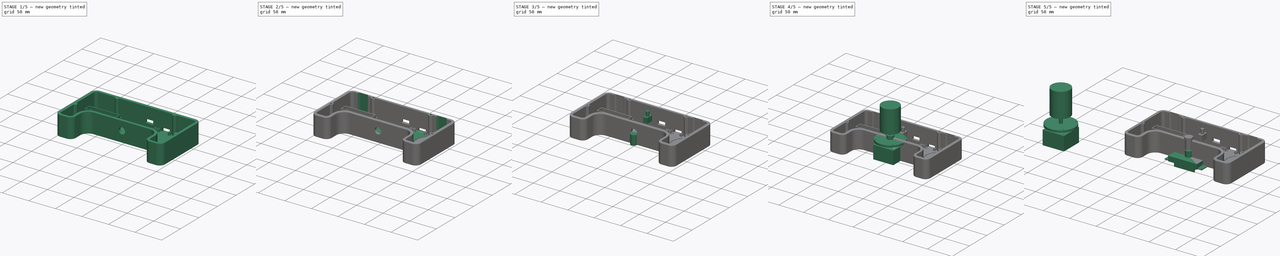
[diagram: build sequence overview — one tinted view per stage of 5, left to right]
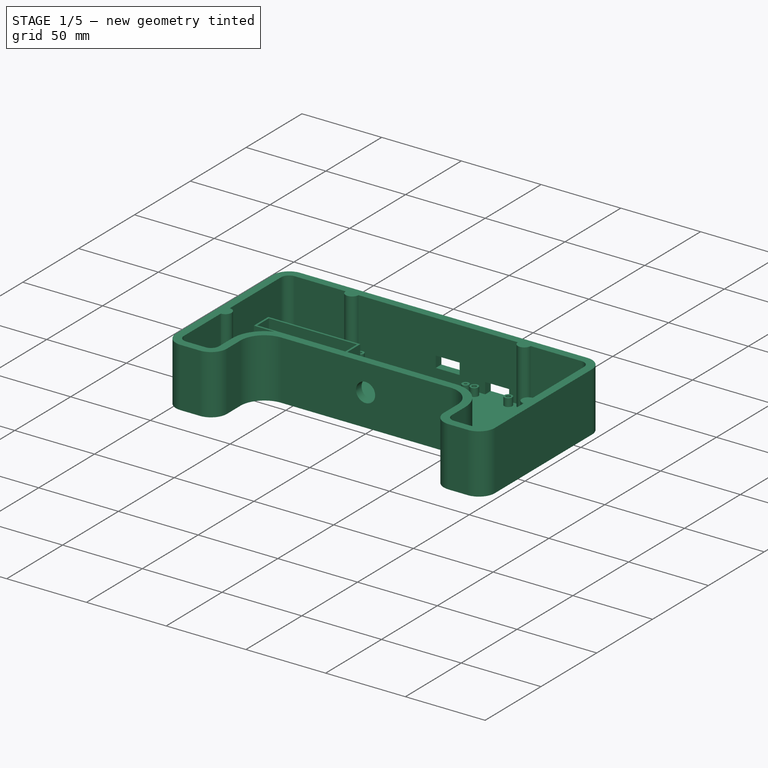
[diagram: stage 1 of 5 — iso view after this stage's code; geometry added in this stage tinted green]
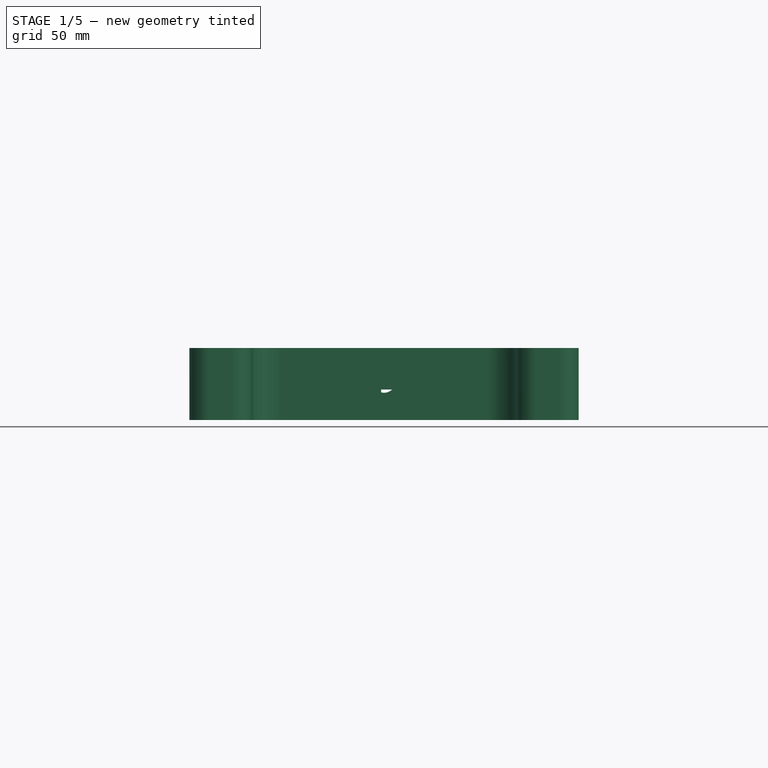
[diagram: stage 1 of 5 — front view after this stage's code; geometry added in this stage tinted green]
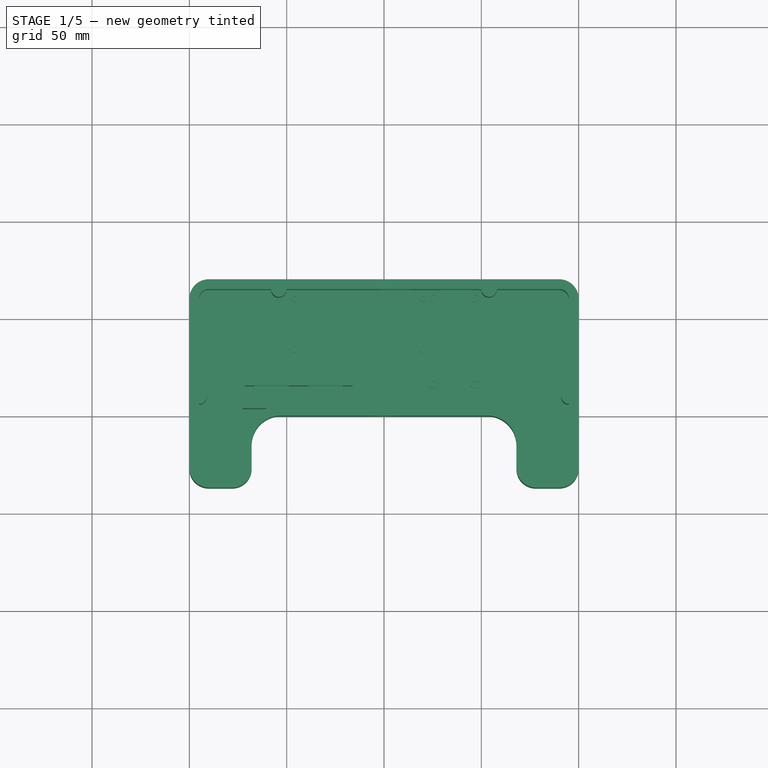
[diagram: stage 1 of 5 — top view after this stage's code; geometry added in this stage tinted green]
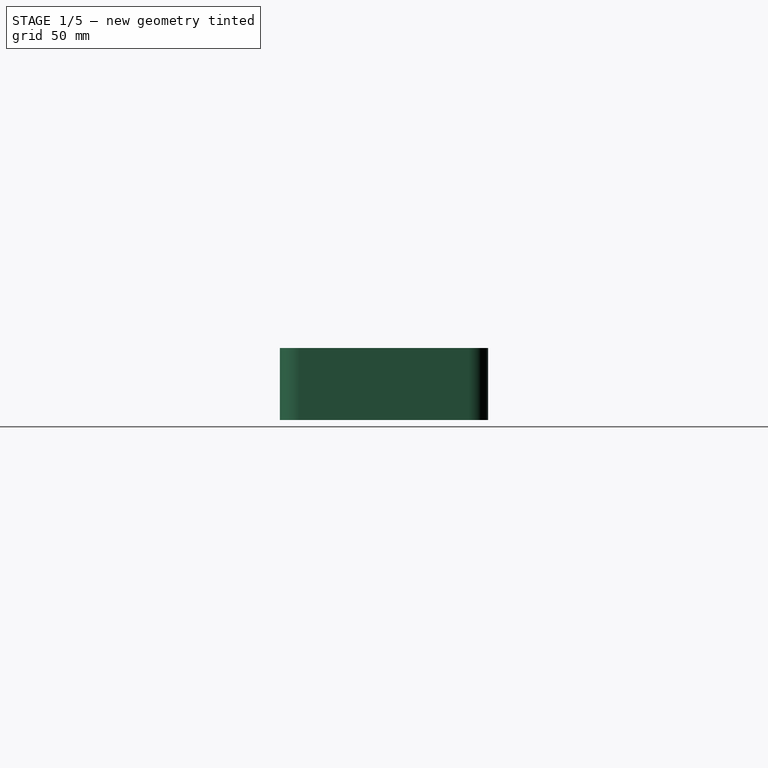
[diagram: stage 1 of 5 — right view after this stage's code; geometry added in this stage tinted green]
FCSTD DOCUMENT  (FreeCAD 0.19R24276 (Git))
Label: Remote
License: All rights reserved
LicenseURL: http://en.wikipedia.org/wiki/All_rights_reserved
objects: Sketcher::SketchObject×42, PartDesign::Pad×26, PartDesign::Body×19, PartDesign::Pocket×16, PartDesign::FeatureBase×9, PartDesign::Fillet×2, Part::Feature×1, App::DocumentObjectGroup×1
note: 159 computed .brp shape members not serialized (recipe doc carries the construction recipe); baked Part::Feature solids carry a one-line shape summary decoded from their .brp

FEATURE [Part::Feature] Part__Feature  label="Remotev20Bruton"
  Placement = pos=(63,-100,40) rot=(0,0,1;0rad)
  shape: bbox 244.6 x 109.4 x 52.01 mm, 236 faces, 4 solids (baked)
FEATURE [Sketcher::SketchObject] Sketch
  FullyConstrained = true
  MapMode = 5
  Support = -> [XY_Plane]
  sketch-geometry (16):
    g0: LineSegment StartX=-100 StartY=-27 StartZ=0 EndX=-100 EndY=60 EndZ=0
    g1: LineSegment StartX=-90 StartY=70 StartZ=0 EndX=90 EndY=70 EndZ=0
    g2: LineSegment StartX=100 StartY=60 StartZ=0 EndX=100 EndY=-27 EndZ=0
    g3: LineSegment StartX=90 StartY=-37 StartZ=0 EndX=78 EndY=-37 EndZ=0
    g4: LineSegment StartX=68 StartY=-27 StartZ=0 EndX=68 EndY=-15 EndZ=0
    g5: LineSegment StartX=53 StartY=0 StartZ=0 EndX=-53 EndY=0 EndZ=0
    g6: LineSegment StartX=-68 StartY=-15 StartZ=0 EndX=-68 EndY=-27 EndZ=0
    g7: LineSegment StartX=-78 StartY=-37 StartZ=0 EndX=-90 EndY=-37 EndZ=0
    g8: ArcOfCircle CenterX=-53 CenterY=-15 CenterZ=0 NormalX=0 NormalY=0 NormalZ=1 AngleXU=0 Radius=15 StartAngle=1.5708 EndAngle=3.14159
    g9: ArcOfCircle CenterX=53 CenterY=-15 CenterZ=0 NormalX=0 NormalY=0 NormalZ=1 AngleXU=0 Radius=15 StartAngle=0 EndAngle=1.5708
    g10: ArcOfCircle CenterX=-90 CenterY=-27 CenterZ=0 NormalX=0 NormalY=0 NormalZ=1 AngleXU=0 Radius=10 StartAngle=3.14159 EndAngle=4.71239
    g11: ArcOfCircle CenterX=-78 CenterY=-27 CenterZ=0 NormalX=0 NormalY=0 NormalZ=1 AngleXU=0 Radius=10 StartAngle=4.71239 EndAngle=6.28319
    g12: ArcOfCircle CenterX=78 CenterY=-27 CenterZ=0 NormalX=0 NormalY=0 NormalZ=1 AngleXU=0 Radius=10 StartAngle=3.14159 EndAngle=4.71239
    g13: ArcOfCircle CenterX=90 CenterY=-27 CenterZ=0 NormalX=0 NormalY=0 NormalZ=1 AngleXU=0 Radius=10 StartAngle=4.71239 EndAngle=6.28319
    g14: ArcOfCircle CenterX=-90 CenterY=60 CenterZ=0 NormalX=0 NormalY=0 NormalZ=1 AngleXU=0 Radius=10 StartAngle=1.5708 EndAngle=3.14159
    g15: ArcOfCircle CenterX=90 CenterY=60 CenterZ=0 NormalX=0 NormalY=0 NormalZ=1 AngleXU=0 Radius=10 StartAngle=0 EndAngle=1.5708
  constraints (39):
    c: Vertical(g4)
    c: Vertical(g6)
    c: Horizontal(g7)
    c: Horizontal(g3)
    c: Equal(g3,g7)
    c: Angle(g2,g3) = 1.5708
    c: Equal(g6,g4)
    c: Tangent(g5,g8) = -1.5708
    c: Tangent(g6,g8) = -1.5708
    c: Tangent(g4,g9) = -1.5708
    c: Tangent(g5,g9) = -1.5708
    c: Horizontal(g5)
    c: Equal(g9,g8)
    c: Equal(g2,g0)
    c: Radius(g8) = 15
    c: PointOnObject(g5,g-1)
    c: Tangent(g0,g10) = 1.5708
    c: Tangent(g7,g10) = 1.5708
    c: Tangent(g6,g11) = 1.5708
    c: Tangent(g7,g11) = 1.5708
    c: Tangent(g3,g12) = 1.5708
    c: Tangent(g4,g12) = 1.5708
    c: Tangent(g2,g13) = 1.5708
    c: Tangent(g3,g13) = 1.5708
    c: Equal(g13,g12)
    c: Equal(g11,g10)
    c: Equal(g11,g12)
    c: Radius(g11) = 10
    c: Distance(g0,g2) = 200
    c: Distance(g7,g5) = 37
    c: Tangent(g0,g14) = 1.5708
    c: Tangent(g1,g14) = 1.5708
    c: Tangent(g1,g15) = 1.5708
    c: Tangent(g2,g15) = 1.5708
    c: Symmetric(g1,g1,g-2)
    c: Equal(g14,g15)
    c: Radius(g14) = 10
    c: Distance(g3,g1) = 107
    c: Distance(g3) = 12
FEATURE [PartDesign::Pad] Pad  label="RemoteV1BodyBody"
  Direction = (1,1,1)
  Length = 37
  Length2 = 100
  Profile = -> Sketch
  Type = 0
FEATURE [Sketcher::SketchObject] Sketch001
  ExternalGeometry = -> [Pad]
  FullyConstrained = true
  MapMode = 5
  Placement = pos=(0,0,37) rot=(0,0,1;0rad)
  Support = -> [Pad]
  sketch-geometry (16):
    g0: ArcOfCircle CenterX=-90 CenterY=60 CenterZ=0 NormalX=0 NormalY=0 NormalZ=1 AngleXU=0 Radius=5 StartAngle=1.5708 EndAngle=3.14159
    g1: ArcOfCircle CenterX=-90 CenterY=-27 CenterZ=0 NormalX=0 NormalY=0 NormalZ=1 AngleXU=0 Radius=5 StartAngle=3.14159 EndAngle=4.71239
    g2: ArcOfCircle CenterX=-78 CenterY=-27 CenterZ=0 NormalX=0 NormalY=0 NormalZ=1 AngleXU=0 Radius=5 StartAngle=4.71239 EndAngle=6.28319
    g3: ArcOfCircle CenterX=-53 CenterY=-15 CenterZ=0 NormalX=0 NormalY=0 NormalZ=1 AngleXU=0 Radius=20 StartAngle=1.5708 EndAngle=3.14159
    g4: ArcOfCircle CenterX=53 CenterY=-15 CenterZ=0 NormalX=0 NormalY=0 NormalZ=1 AngleXU=0 Radius=20 StartAngle=0 EndAngle=1.5708
    g5: ArcOfCircle CenterX=78 CenterY=-27 CenterZ=0 NormalX=0 NormalY=0 NormalZ=1 AngleXU=0 Radius=5 StartAngle=3.14159 EndAngle=4.71239
    g6: ArcOfCircle CenterX=90 CenterY=-27 CenterZ=0 NormalX=0 NormalY=0 NormalZ=1 AngleXU=0 Radius=5 StartAngle=4.71239 EndAngle=6.28319
    g7: ArcOfCircle CenterX=90 CenterY=60 CenterZ=0 NormalX=0 NormalY=0 NormalZ=1 AngleXU=0 Radius=5 StartAngle=0 EndAngle=1.5708
    g8: LineSegment StartX=-90 StartY=65 StartZ=0 EndX=90 EndY=65 EndZ=0
    g9: LineSegment StartX=-53 StartY=5 StartZ=0 EndX=53 EndY=5 EndZ=0
    g10: LineSegment StartX=-73 StartY=-15 StartZ=0 EndX=-73 EndY=-27 EndZ=0
    g11: LineSegment StartX=-78 StartY=-32 StartZ=0 EndX=-90 EndY=-32 EndZ=0
    g12: LineSegment StartX=-95 StartY=-27 StartZ=0 EndX=-95 EndY=60 EndZ=0
    g13: LineSegment StartX=73 StartY=-15 StartZ=0 EndX=73 EndY=-27 EndZ=0
    g14: LineSegment StartX=78 StartY=-32 StartZ=0 EndX=90 EndY=-32 EndZ=0
    g15: LineSegment StartX=95 StartY=-27 StartZ=0 EndX=95 EndY=60 EndZ=0
  constraints (33):
    c: Coincident(g0,g-3)
    c: Coincident(g1,g-10)
    c: Coincident(g2,g-9)
    c: Coincident(g3,g-8)
    c: Coincident(g5,g-6)
    c: Coincident(g6,g-5)
    c: Coincident(g7,g-4)
    c: Distance(g7,g-4) = 5
    c: Distance(g4,g-7) = 5
    c: Horizontal(g8)
    c: Tangent(g8,g0) = 1.5708
    c: Tangent(g8,g7) = 1.5708
    c: Horizontal(g9)
    c: Tangent(g9,g4) = 1.5708
    c: Tangent(g9,g3) = 1.5708
    c: Vertical(g10)
    c: Horizontal(g11)
    c: Tangent(g10,g3) = -1.5708
    c: Tangent(g10,g2) = 1.5708
    c: Tangent(g11,g2) = 1.5708
    c: Tangent(g11,g1) = 1.5708
    c: Tangent(g12,g0) = 1.5708
    c: Tangent(g12,g1) = 1.5708
    c: Horizontal(g14)
    c: Tangent(g15,g7) = -1.5708
    c: Tangent(g15,g6) = -1.5708
    c: Tangent(g14,g6) = -1.5708
    c: Tangent(g14,g5) = -1.5708
    c: Vertical(g13)
    c: Tangent(g13,g4) = 1.5708
    c: Tangent(g13,g5) = -1.5708
    c: Parallel(g-11,g15)
    c: Parallel(g12,g-12)
FEATURE [PartDesign::Pocket] Pocket  label="RemoteV1BodyInternalCut"
  BaseFeature = -> Pad
  Length = 35
  Length2 = 100
  Profile = -> Sketch001
  Type = 0
FEATURE [PartDesign::Body] Body029  label="PCB"
  Group = -> [Sketch176,Pad075]
  Origin = -> Origin029
  Placement = pos=(-13,48,7) rot=(0,0,1;0rad)
  Tip = -> Pad075
FEATURE [Sketcher::SketchObject] Sketch177
  FullyConstrained = true
  MapMode = 5
  Placement = pos=(0,0,2) rot=(0,0,1;0rad)
  Support = -> [Pocket]
  sketch-geometry (24):
    g0: LineSegment StartX=-46 StartY=61 StartZ=0 EndX=20 EndY=61 EndZ=0
    g1: LineSegment StartX=20 StartY=61 StartZ=0 EndX=20 EndY=35 EndZ=0
    g2: LineSegment StartX=20 StartY=35 StartZ=0 EndX=-46 EndY=35 EndZ=0
    g3: LineSegment StartX=-46 StartY=35 StartZ=0 EndX=-46 EndY=61 EndZ=0
    g4: Circle CenterX=20 CenterY=61 CenterZ=0 NormalX=0 NormalY=0 NormalZ=1 AngleXU=0 Radius=0.9
    g5: Circle CenterX=20 CenterY=61 CenterZ=0 NormalX=0 NormalY=0 NormalZ=1 AngleXU=0 Radius=2.2
    g6: Circle CenterX=-46 CenterY=61 CenterZ=0 NormalX=0 NormalY=0 NormalZ=1 AngleXU=0 Radius=0.9
    g7: Circle CenterX=-46 CenterY=61 CenterZ=0 NormalX=0 NormalY=0 NormalZ=1 AngleXU=0 Radius=2.2
    g8: Circle CenterX=-46 CenterY=35 CenterZ=0 NormalX=0 NormalY=0 NormalZ=1 AngleXU=0 Radius=0.9
    g9: Circle CenterX=-46 CenterY=35 CenterZ=0 NormalX=0 NormalY=0 NormalZ=1 AngleXU=0 Radius=2.2
    g10: Circle CenterX=20 CenterY=35 CenterZ=0 NormalX=0 NormalY=0 NormalZ=1 AngleXU=0 Radius=0.9
    g11: Circle CenterX=20 CenterY=35 CenterZ=0 NormalX=0 NormalY=0 NormalZ=1 AngleXU=0 Radius=2.2
    g12: LineSegment StartX=25.34 StartY=61.16 StartZ=0 EndX=46.64 EndY=61.16 EndZ=0
    g13: LineSegment StartX=46.64 StartY=61.16 StartZ=0 EndX=46.64 EndY=16.86 EndZ=0
    g14: LineSegment StartX=46.64 StartY=16.86 StartZ=0 EndX=25.34 EndY=16.86 EndZ=0
    g15: LineSegment StartX=25.34 StartY=16.86 StartZ=0 EndX=25.34 EndY=61.16 EndZ=0
    g16: Circle CenterX=25.34 CenterY=61.16 CenterZ=0 NormalX=0 NormalY=0 NormalZ=1 AngleXU=0 Radius=1.4
    g17: Circle CenterX=25.34 CenterY=61.16 CenterZ=0 NormalX=0 NormalY=0 NormalZ=1 AngleXU=0 Radius=2.5
    g18: Circle CenterX=46.64 CenterY=61.16 CenterZ=0 NormalX=0 NormalY=0 NormalZ=1 AngleXU=0 Radius=1.4
    g19: Circle CenterX=46.64 CenterY=61.16 CenterZ=0 NormalX=0 NormalY=0 NormalZ=1 AngleXU=0 Radius=2.5
    g20: Circle CenterX=46.64 CenterY=16.86 CenterZ=0 NormalX=0 NormalY=0 NormalZ=1 AngleXU=0 Radius=1.4
    g21: Circle CenterX=46.64 CenterY=16.86 CenterZ=0 NormalX=0 NormalY=0 NormalZ=1 AngleXU=0 Radius=2.5
    g22: Circle CenterX=25.34 CenterY=16.86 CenterZ=0 NormalX=0 NormalY=0 NormalZ=1 AngleXU=0 Radius=1.4
    g23: Circle CenterX=25.34 CenterY=16.86 CenterZ=0 NormalX=0 NormalY=0 NormalZ=1 AngleXU=0 Radius=2.5
  constraints (56):
    c: Coincident(g0,g1)
    c: Coincident(g1,g2)
    c: Coincident(g2,g3)
    c: Coincident(g3,g0)
    c: Horizontal(g0)
    c: Horizontal(g2)
    c: Vertical(g1)
    c: Vertical(g3)
    c: Coincident(g4,g0)
    c: Coincident(g5,g4)
    c: Coincident(g6,g0)
    c: Coincident(g7,g6)
    c: Coincident(g8,g2)
    c: Coincident(g9,g8)
    c: Coincident(g10,g1)
    c: Coincident(g11,g10)
    c: Equal(g11,g5)
    c: Equal(g5,g7)
    c: Equal(g7,g9)
    c: Equal(g8,g6)
    c: Equal(g6,g4)
    c: Equal(g4,g10)
    c: Coincident(g12,g13)
    c: Coincident(g13,g14)
    c: Coincident(g14,g15)
    c: Coincident(g15,g12)
    c: Horizontal(g12)
    c: Horizontal(g14)
    c: Vertical(g13)
    c: Vertical(g15)
    c: Distance(g14) = 21.3
    c: Distance(g13) = 44.3
    c: Coincident(g16,g12)
    c: Coincident(g17,g16)
    c: Coincident(g18,g12)
    c: Coincident(g19,g18)
    c: Coincident(g20,g13)
    c: Coincident(g21,g20)
    c: Coincident(g22,g14)
    c: Coincident(g23,g22)
    c: Equal(g22,g20)
    c: Equal(g20,g18)
    c: Equal(g18,g16)
    c: Equal(g17,g19)
    c: Equal(g19,g21)
    c: Equal(g21,g23)
    c: Radius(g18) = 1.4
    c: Radius(g19) = 2.5
    c: DistanceY(g-1,g20) = 16.86
    c: DistanceX(g-2,g22) = 25.34
    c: Radius(g4) = 0.9
    c: Radius(g5) = 2.2
    c: Distance(g1) = 26
    c: Distance(g2) = 66
    c: DistanceX(g-2,g10) = 20
    c: DistanceY(g-1,g10) = 35
FEATURE [PartDesign::Pad] Pad076  label="RemoteV1ElectronicsStandoffs"
  BaseFeature = -> Pocket
  Direction = (1,1,1)
  Length = 5
  Length2 = 100
  Profile = -> Sketch177
  Type = 0
FEATURE [Sketcher::SketchObject] Sketch178
  FullyConstrained = true
  MapMode = 5
  Placement = pos=(0,0,0) rot=(1,0,0;1.5708rad)
  Support = -> [Pad076]
  sketch-geometry (1):
    g0: Circle CenterX=0 CenterY=20 CenterZ=0 NormalX=0 NormalY=0 NormalZ=1 AngleXU=0 Radius=6
  constraints (3):
    c: PointOnObject(g0,g-2)
    c: Radius(g0) = 6
    c: DistanceY(g-1,g0) = 20
FEATURE [PartDesign::Pocket] Pocket005  label="RemoteV1PowerSwitchCut"
  BaseFeature = -> Pad076
  Length = 5
  Length2 = 100
  Profile = -> Sketch178
  Type = 0
FEATURE [Sketcher::SketchObject] Sketch179
  ExternalGeometry = -> [Pocket005]
  FullyConstrained = true
  MapMode = 5
  Placement = pos=(0,0,2) rot=(0,0,1;0rad)
  Support = -> [Pocket005]
  sketch-geometry (21):
    g0: LineSegment StartX=-71.5 StartY=15.5 StartZ=0 EndX=-66.5 EndY=15.5 EndZ=0
    g1: LineSegment StartX=-66.5 StartY=15.5 StartZ=0 EndX=-66.5 EndY=16.7 EndZ=0
    g2: LineSegment StartX=-66.5 StartY=16.7 StartZ=0 EndX=-72.7 EndY=16.7 EndZ=0
    g3: LineSegment StartX=-71.5 StartY=15.5 StartZ=0 EndX=-71.5 EndY=5 EndZ=0
    g4: LineSegment StartX=-72.7 StartY=3.8 StartZ=0 EndX=-72.7 EndY=16.7 EndZ=0
    g5: LineSegment StartX=-16.2 StartY=15.5 StartZ=0 EndX=-21.2 EndY=15.5 EndZ=0
    g6: LineSegment StartX=-21.2 StartY=15.5 StartZ=0 EndX=-21.2 EndY=16.7 EndZ=0
    g7: LineSegment StartX=-21.2 StartY=16.7 StartZ=0 EndX=-15 EndY=16.7 EndZ=0
    g8: LineSegment StartX=-71.5 StartY=15.5 StartZ=0 EndX=-72.7 EndY=15.5 EndZ=0
    g9: LineSegment StartX=-16.2 StartY=15.5 StartZ=0 EndX=-16.2 EndY=5 EndZ=0
    g10: LineSegment StartX=-16.2 StartY=5 StartZ=0 EndX=-15 EndY=5 EndZ=0
    g11: LineSegment StartX=-15 StartY=5 StartZ=0 EndX=-15 EndY=16.7 EndZ=0
    g12: LineSegment StartX=-48.85 StartY=15.5 StartZ=0 EndX=-38.85 EndY=15.5 EndZ=0
    g13: LineSegment StartX=-38.85 StartY=15.5 StartZ=0 EndX=-38.85 EndY=16.7 EndZ=0
    g14: LineSegment StartX=-38.85 StartY=16.7 StartZ=0 EndX=-48.85 EndY=16.7 EndZ=0
    g15: LineSegment StartX=-48.85 StartY=16.7 StartZ=0 EndX=-48.85 EndY=15.5 EndZ=0
    g16: LineSegment StartX=-66.5 StartY=15.5 StartZ=0 EndX=-48.85 EndY=15.5 EndZ=0
    g17: LineSegment StartX=-38.85 StartY=15.5 StartZ=0 EndX=-21.2 EndY=15.5 EndZ=0
    g18: LineSegment StartX=-72.7 StartY=3.8 StartZ=0 EndX=-59.8234 EndY=3.8 EndZ=0
    g19: ArcOfCircle CenterX=-53 CenterY=-15 CenterZ=0 NormalX=0 NormalY=0 NormalZ=1 AngleXU=0 Radius=20 StartAngle=1.5708 EndAngle=1.91896
    g20: LineSegment StartX=-71.5 StartY=5 StartZ=0 EndX=-53 EndY=5 EndZ=0
  constraints (60):
    c: Horizontal(g0)
    c: Coincident(g0,g1)
    c: Coincident(g1,g2)
    c: Horizontal(g2)
    c: Coincident(g3,g0)
    c: Vertical(g3)
    c: Coincident(g4,g2)
    c: Vertical(g4)
    c: Vertical(g1)
    c: Distance(g1) = 1.2
    c: Horizontal(g5)
    c: Coincident(g5,g6)
    c: Vertical(g6)
    c: Coincident(g6,g7)
    c: Horizontal(g7)
    c: Equal(g6,g1)
    c: PointOnObject(g0,g5)
    c: Equal(g5,g0)
    c: Distance(g5) = 5
    c: Coincident(g8,g0)
    c: PointOnObject(g8,g4)
    c: Horizontal(g8)
    c: Equal(g1,g8)
    c: DistanceX(g-2,g7) = -15
    c: Coincident(g5,g9)
    c: Vertical(g9)
    c: Coincident(g9,g10)
    c: Horizontal(g10)
    c: Coincident(g10,g11)
    c: Coincident(g11,g7)
    c: Vertical(g11)
    c: Equal(g10,g6)
    c: Coincident(g12,g13)
    c: Coincident(g13,g14)
    c: Coincident(g14,g15)
    c: Coincident(g15,g12)
    c: Horizontal(g12)
    c: Horizontal(g14)
    c: Vertical(g13)
    c: Vertical(g15)
    c: Equal(g6,g13)
    c: PointOnObject(g5,g12)
    c: Distance(g14) = 10
    c: Coincident(g16,g0)
    c: Coincident(g17,g12)
    c: Coincident(g17,g5)
    c: Coincident(g16,g12)
    c: Equal(g16,g17)
    c: PointOnObject(g10,g-4)
    c: Coincident(g18,g4)
    c: Horizontal(g18)
    c: Coincident(g19,g18)
    c: Coincident(g19,g-4)
    c: Coincident(g-3,g19)
    c: Distance(g3,g18) = 1.2
    c: Coincident(g20,g3)
    c: Coincident(g20,g19)
    c: Distance(g9) = 10.5
    c: PointOnObject(g9,g20)
    c: Distance(g20) = 18.5
FEATURE [PartDesign::Pad] Pad077  label="RemoteV1BatteryWalls"
  BaseFeature = -> Pocket005
  Direction = (1,1,1)
  Length = 35
  Length2 = 100
  Profile = -> Sketch179
  Type = 0
FEATURE [Sketcher::SketchObject] Sketch180
  FullyConstrained = true
  MapMode = 5
  Placement = pos=(0,70,0) rot=(0,0.707107,0.707107;3.14159rad)
  Support = -> [Pad077]
  sketch-geometry (8):
    g0: LineSegment StartX=-44.5 StartY=2 StartZ=0 EndX=-29.5 EndY=2 EndZ=0
    g1: LineSegment StartX=-29.5 StartY=2 StartZ=0 EndX=-29.5 EndY=9 EndZ=0
    g2: LineSegment StartX=-29.5 StartY=9 StartZ=0 EndX=-44.5 EndY=9 EndZ=0
    g3: LineSegment StartX=-44.5 StartY=9 StartZ=0 EndX=-44.5 EndY=2 EndZ=0
    g4: LineSegment StartX=-13.5 StartY=8.7 StartZ=0 EndX=1.5 EndY=8.7 EndZ=0
    g5: LineSegment StartX=1.5 StartY=8.7 StartZ=0 EndX=1.5 EndY=15.7 EndZ=0
    g6: LineSegment StartX=1.5 StartY=15.7 StartZ=0 EndX=-13.5 EndY=15.7 EndZ=0
    g7: LineSegment StartX=-13.5 StartY=15.7 StartZ=0 EndX=-13.5 EndY=8.7 EndZ=0
  constraints (24):
    c: Coincident(g0,g1)
    c: Coincident(g1,g2)
    c: Coincident(g2,g3)
    c: Coincident(g3,g0)
    c: Horizontal(g0)
    c: Horizontal(g2)
    c: Vertical(g1)
    c: Vertical(g3)
    c: Distance(g1) = 7
    c: Distance(g2) = 15
    c: DistanceY(g-1,g0) = 2
    c: DistanceX(g-2,g1) = -29.5
    c: Coincident(g4,g5)
    c: Coincident(g5,g6)
    c: Coincident(g6,g7)
    c: Coincident(g7,g4)
    c: Horizontal(g4)
    c: Horizontal(g6)
    c: Vertical(g5)
    c: Vertical(g7)
    c: Equal(g6,g2)
    c: Equal(g7,g1)
    c: DistanceY(g-1,g4) = 8.7
    c: DistanceX(g-2,g5) = 1.5
FEATURE [PartDesign::Pocket] Pocket006  label="RemoteV1USBCuts"
  BaseFeature = -> Pad077
  Length = 5
  Length2 = 100
  Profile = -> Sketch180
  Type = 0
FEATURE [PartDesign::Body] Body030  label="JoyStick2"
  BaseFeature = -> Body002
  Group = -> [Clone]
  Origin = -> Origin030
  Placement = pos=(272.88,98,10) rot=(0,0,1;0rad)
  Tip = -> Clone
FEATURE [Sketcher::SketchObject] Sketch182
  ExternalGeometry = -> [Pocket006]
  FullyConstrained = true
  MapMode = 5
  Placement = pos=(0,16.7,0) rot=(0,0.707107,0.707107;3.14159rad)
  Support = -> [Pocket006]
  sketch-geometry (16):
    g0: LineSegment StartX=21.2 StartY=37 StartZ=0 EndX=38.85 EndY=37 EndZ=0
    g1: LineSegment StartX=38.85 StartY=37 StartZ=0 EndX=38.85 EndY=27 EndZ=0
    g2: LineSegment StartX=38.85 StartY=27 StartZ=0 EndX=21.2 EndY=27 EndZ=0
    g3: LineSegment StartX=21.2 StartY=27 StartZ=0 EndX=21.2 EndY=37 EndZ=0
    g4: LineSegment StartX=48.85 StartY=37 StartZ=0 EndX=66.5 EndY=37 EndZ=0
    g5: LineSegment StartX=66.5 StartY=37 StartZ=0 EndX=66.5 EndY=27 EndZ=0
    g6: LineSegment StartX=66.5 StartY=27 StartZ=0 EndX=48.85 EndY=27 EndZ=0
    g7: LineSegment StartX=48.85 StartY=27 StartZ=0 EndX=48.85 EndY=37 EndZ=0
    g8: LineSegment StartX=21.2 StartY=17 StartZ=0 EndX=38.85 EndY=17 EndZ=0
    g9: LineSegment StartX=38.85 StartY=17 StartZ=0 EndX=38.85 EndY=12 EndZ=0
    g10: LineSegment StartX=38.85 StartY=12 StartZ=0 EndX=21.2 EndY=12 EndZ=0
    g11: LineSegment StartX=21.2 StartY=12 StartZ=0 EndX=21.2 EndY=17 EndZ=0
    g12: LineSegment StartX=48.85 StartY=12 StartZ=0 EndX=66.5 EndY=12 EndZ=0
    g13: LineSegment StartX=66.5 StartY=12 StartZ=0 EndX=66.5 EndY=17 EndZ=0
    g14: LineSegment StartX=66.5 StartY=17 StartZ=0 EndX=48.85 EndY=17 EndZ=0
    g15: LineSegment StartX=48.85 StartY=17 StartZ=0 EndX=48.85 EndY=12 EndZ=0
  constraints (44):
    c: Coincident(g4,g7)
    c: Coincident(g7,g6)
    c: Horizontal(g6)
    c: Coincident(g4,g5)
    c: Coincident(g4,g-4)
    c: Vertical(g5)
    c: Coincident(g5,g6)
    c: Distance(g7) = 10
    c: Equal(g7,g1)
    c: Distance(g15) = 5
    c: Equal(g15,g9)
    c: Distance(g6,g14) = 10
    c: Coincident(g13,g14)
    c: Horizontal(g14)
    c: PointOnObject(g13,g-4)
    c: Coincident(g12,g13)
    c: Vertical(g13)
    c: Coincident(g15,g12)
    c: Horizontal(g12)
    c: Coincident(g15,g14)
    c: Vertical(g15)
    c: Coincident(g9,g8)
    c: PointOnObject(g14,g8)
    c: Coincident(g9,g10)
    c: Vertical(g9)
    c: Vertical(g11)
    c: Horizontal(g8)
    c: Horizontal(g10)
    c: Coincident(g11,g10)
    c: Coincident(g11,g8)
    c: PointOnObject(g8,g-5)
    c: Coincident(g3,g-5)
    c: Coincident(g3,g0)
    c: Coincident(g2,g3)
    c: Vertical(g3)
    c: Vertical(g1)
    c: Coincident(g1,g2)
    c: Horizontal(g2)
    c: PointOnObject(g14,g-6)
    c: Coincident(g4,g-6)
    c: Vertical(g7)
    c: Coincident(g0,g1)
    c: Coincident(g0,g-3)
    c: PointOnObject(g8,g-3)
FEATURE [PartDesign::Pad] Pad079  label="RemoteV1BatteryWallsReinforcement"
  BaseFeature = -> Pocket006
  Direction = (1,1,1)
  Length = 1.2
  Length2 = 100
  Profile = -> Sketch182
  Reversed = true
  Type = 0
FEATURE [Sketcher::SketchObject] Sketch188
  ExternalGeometry = -> [Pad079]
  FullyConstrained = true
  MapMode = 5
  Placement = pos=(0,0,37) rot=(0,0,1;0rad)
  Support = -> [Pad079]
  sketch-geometry (8):
    g0: ArcOfCircle CenterX=-95 CenterY=10 CenterZ=0 NormalX=0 NormalY=0 NormalZ=1 AngleXU=0 Radius=4 StartAngle=4.71238 EndAngle=7.85397
    g1: ArcOfCircle CenterX=-54 CenterY=65 CenterZ=0 NormalX=0 NormalY=0 NormalZ=1 AngleXU=0 Radius=4 StartAngle=3.14159 EndAngle=6.28319
    g2: ArcOfCircle CenterX=95 CenterY=10 CenterZ=0 NormalX=0 NormalY=0 NormalZ=1 AngleXU=0 Radius=4 StartAngle=1.5708 EndAngle=4.71239
    g3: ArcOfCircle CenterX=54 CenterY=65 CenterZ=0 NormalX=0 NormalY=0 NormalZ=1 AngleXU=0 Radius=4 StartAngle=3.14159 EndAngle=6.28319
    g4: LineSegment StartX=-95.0001 StartY=6 StartZ=0 EndX=-95 EndY=14 EndZ=0
    g5: LineSegment StartX=-58 StartY=65 StartZ=0 EndX=-50 EndY=65 EndZ=0
    g6: LineSegment StartX=50 StartY=65 StartZ=0 EndX=58 EndY=65 EndZ=0
    g7: LineSegment StartX=95 StartY=14 StartZ=0 EndX=95 EndY=6 EndZ=0
  constraints (26):
    c: Equal(g1,g0)
    c: Equal(g0,g3)
    c: Equal(g3,g2)
    c: Radius(g2) = 4
    c: Symmetric(g2,g0,g-2)
    c: Symmetric(g3,g1,g-2)
    c: DistanceX(g-2,g3) = 54
    c: DistanceY(g-1,g2) = 10
    c: Coincident(g4,g0)
    c: Coincident(g4,g0)
    c: Coincident(g5,g1)
    c: Coincident(g5,g1)
    c: Coincident(g6,g3)
    c: Coincident(g6,g3)
    c: Coincident(g7,g2)
    c: Coincident(g7,g2)
    c: PointOnObject(g2,g-4)
    c: PointOnObject(g2,g-4)
    c: PointOnObject(g3,g-3)
    c: Horizontal(g6)
    c: PointOnObject(g3,g6)
    c: PointOnObject(g1,g-3)
    c: Horizontal(g5)
    c: PointOnObject(g0,g4)
    c: PointOnObject(g0,g-5)
    c: PointOnObject(g2,g-4)
FEATURE [PartDesign::Pad] Pad080  label="RemoteV1ScrewholeTubes"
  BaseFeature = -> Pad079
  Direction = (1,1,1)
  Length = 35
  Length2 = 100
  Profile = -> Sketch188
  Reversed = true
  Type = 0
FEATURE [PartDesign::Body] Body  label="RemoteV1Body"
  Group = -> [Sketch,Pad,Sketch001,Pocket,Sketch177,Pad076,Sketch178,Pocket005,Sketch179,Pad077,Sketch180,Pocket006,Sketch182,Pad079,Sketch188,Pad080,Sketch189,Pocket012,Fillet,Sketch192,Pocket015,Sketch193,Pocket016,Sketch194,Pad081]
  Origin = -> Origin
  Tip = -> Pad081
FEATURE [Sketcher::SketchObject] Sketch195
  FullyConstrained = true
  MapMode = 5
  Support = -> [XY_Plane038]
  sketch-geometry (4):
    g0: LineSegment StartX=-8.75 StartY=14 StartZ=0 EndX=8.75 EndY=14 EndZ=0
    g1: LineSegment StartX=8.75 StartY=14 StartZ=0 EndX=8.75 EndY=-14 EndZ=0
    g2: LineSegment StartX=8.75 StartY=-14 StartZ=0 EndX=-8.75 EndY=-14 EndZ=0
    g3: LineSegment StartX=-8.75 StartY=-14 StartZ=0 EndX=-8.75 EndY=14 EndZ=0
  constraints (10):
    c: Coincident(g0,g1)
    c: Coincident(g1,g2)
    c: Coincident(g2,g3)
    c: Coincident(g3,g0)
    c: Horizontal(g0)
    c: Vertical(g1)
    c: Symmetric(g1,g2,g-2)
    c: Distance(g2) = 17.5
    c: Distance(g3) = 28
    c: Symmetric(g2,g0,g-1)
FEATURE [PartDesign::Pad] Pad082  label="ADCBoardBody"
  Direction = (1,1,1)
  Length = 2.5
  Length2 = 100
  Profile = -> Sketch195
  Type = 0
FEATURE [Sketcher::SketchObject] Sketch196
  ExternalGeometry = -> [Pad082]
  FullyConstrained = true
  MapMode = 5
  Placement = pos=(0,0,2.5) rot=(0,0,1;0rad)
  Support = -> [Pad082]
  sketch-geometry (3):
    g0: LineSegment StartX=6.25 StartY=14 StartZ=0 EndX=6.25 EndY=-14 EndZ=0
    g1: Circle CenterX=6.25 CenterY=11.25 CenterZ=0 NormalX=0 NormalY=0 NormalZ=1 AngleXU=0 Radius=2
    g2: Circle CenterX=6.25 CenterY=-11.25 CenterZ=0 NormalX=0 NormalY=0 NormalZ=1 AngleXU=0 Radius=2
  constraints (9):
    c: Vertical(g0)
    c: PointOnObject(g0,g-4)
    c: PointOnObject(g0,g-3)
    c: Distance(g-3,g0) = 2.5
    c: PointOnObject(g1,g0)
    c: Equal(g2,g1)
    c: Symmetric(g1,g2,g-1)
    c: Distance(g1,g2) = 22.5
    c: Radius(g1) = 2
FEATURE [PartDesign::Pocket] Pocket017  label="ADCB oardScrewholes"
  BaseFeature = -> Pad082
  Length = 5
  Length2 = 100
  Profile = -> Sketch196
  Type = 1
FEATURE [PartDesign::Body] Body038  label="ADCBoard1"
  Group = -> [Sketch195,Pad082,Sketch196,Pocket017]
  Origin = -> Origin038
  Placement = pos=(-84.25,-15.75,7) rot=(0,0,1;0rad)
  Tip = -> Pocket017
FEATURE [App::DocumentObjectGroup] Group  label="Electronics"
  Group = -> [Body005,Body009,Body003,Body007,Body008,Body002,Body029,Body030,Body031,Body032,Body033,Body034,Body035,Body036,Body037,Body038]
FEATURE [PartDesign::FeatureBase] Clone008
  BaseFeature = -> Body038
  Placement = pos=(-84.25,-15.75,7) rot=(0,0,1;0rad)
FEATURE [PartDesign::Body] Body039  label="ADCBoard2"
  Group = -> [Clone008]
  Origin = -> Origin039
  Placement = pos=(0,-31.5,0) rot=(0,0,1;3.14159rad)
  Tip = -> Clone008
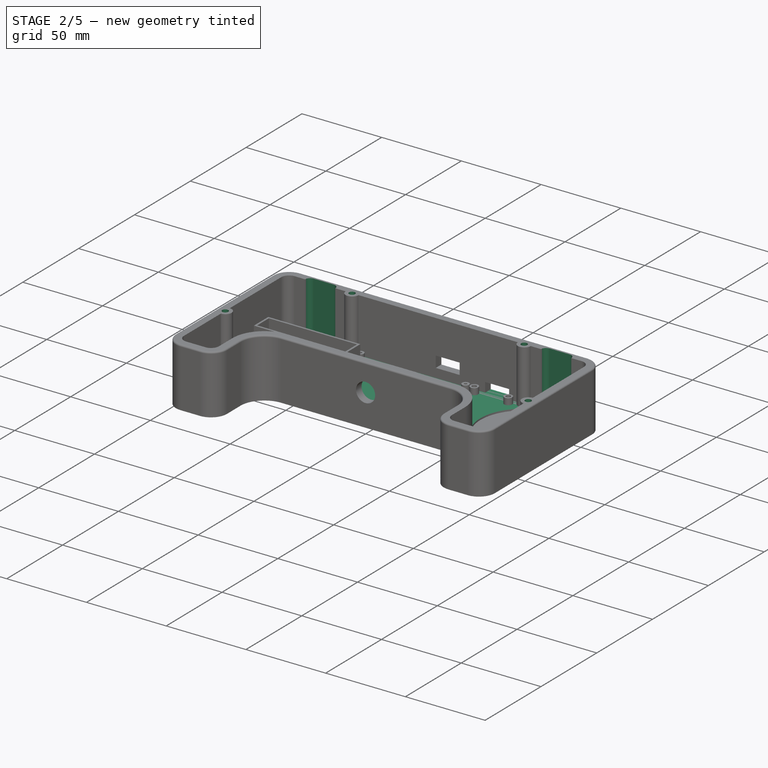
[diagram: stage 2 of 5 — iso view after this stage's code; geometry added in this stage tinted green]
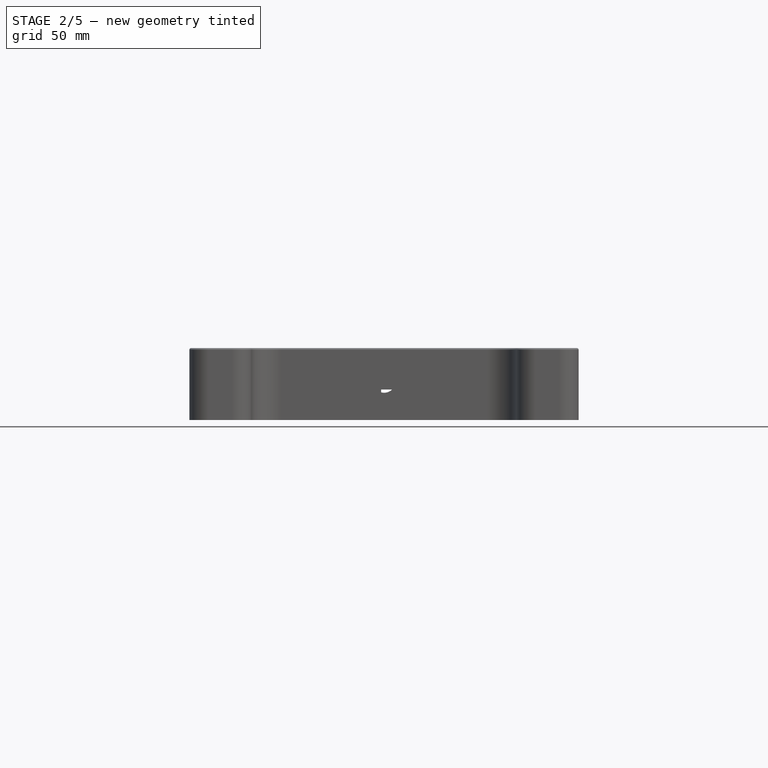
[diagram: stage 2 of 5 — front view after this stage's code; geometry added in this stage tinted green]
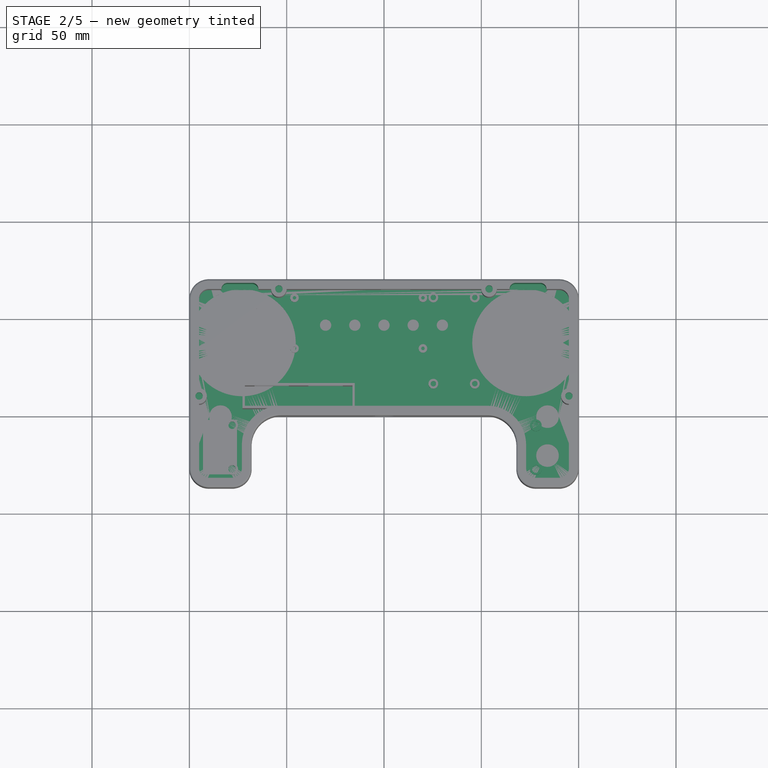
[diagram: stage 2 of 5 — top view after this stage's code; geometry added in this stage tinted green]
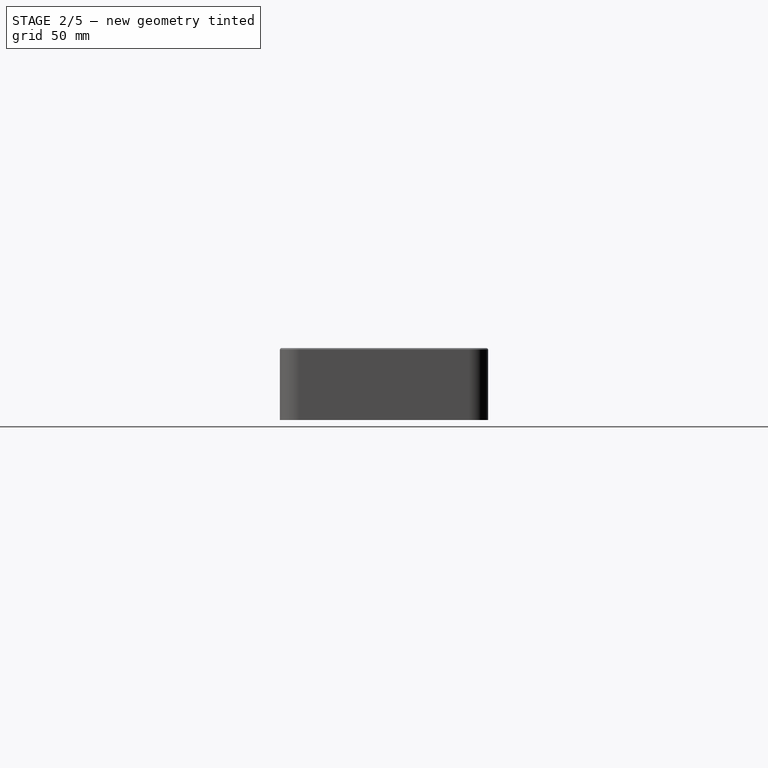
[diagram: stage 2 of 5 — right view after this stage's code; geometry added in this stage tinted green]
FEATURE [Sketcher::SketchObject] Sketch181
  FullyConstrained = true
  MapMode = 5
  Support = -> [XY_Plane001]
  sketch-geometry (16):
    g0: LineSegment StartX=-100 StartY=-27 StartZ=0 EndX=-100 EndY=60 EndZ=0
    g1: LineSegment StartX=-90 StartY=70 StartZ=0 EndX=90 EndY=70 EndZ=0
    g2: LineSegment StartX=100 StartY=60 StartZ=0 EndX=100 EndY=-27 EndZ=0
    g3: LineSegment StartX=90 StartY=-37 StartZ=0 EndX=78 EndY=-37 EndZ=0
    g4: LineSegment StartX=68 StartY=-27 StartZ=0 EndX=68 EndY=-15 EndZ=0
    g5: LineSegment StartX=53 StartY=0 StartZ=0 EndX=-53 EndY=0 EndZ=0
    g6: LineSegment StartX=-68 StartY=-15 StartZ=0 EndX=-68 EndY=-27 EndZ=0
    g7: LineSegment StartX=-78 StartY=-37 StartZ=0 EndX=-90 EndY=-37 EndZ=0
    g8: ArcOfCircle CenterX=-90 CenterY=60 CenterZ=0 NormalX=0 NormalY=0 NormalZ=1 AngleXU=0 Radius=10 StartAngle=1.5708 EndAngle=3.14159
    g9: ArcOfCircle CenterX=90 CenterY=60 CenterZ=0 NormalX=0 NormalY=0 NormalZ=1 AngleXU=0 Radius=10 StartAngle=0 EndAngle=1.5708
    g10: ArcOfCircle CenterX=90 CenterY=-27 CenterZ=0 NormalX=0 NormalY=0 NormalZ=1 AngleXU=0 Radius=10 StartAngle=4.71239 EndAngle=6.28319
    g11: ArcOfCircle CenterX=78 CenterY=-27 CenterZ=0 NormalX=0 NormalY=0 NormalZ=1 AngleXU=0 Radius=10 StartAngle=3.14159 EndAngle=4.71239
    g12: ArcOfCircle CenterX=53 CenterY=-15 CenterZ=0 NormalX=0 NormalY=0 NormalZ=1 AngleXU=0 Radius=15 StartAngle=0 EndAngle=1.5708
    g13: ArcOfCircle CenterX=-53 CenterY=-15 CenterZ=0 NormalX=0 NormalY=0 NormalZ=1 AngleXU=0 Radius=15 StartAngle=1.5708 EndAngle=3.14159
    g14: ArcOfCircle CenterX=-78 CenterY=-27 CenterZ=0 NormalX=0 NormalY=0 NormalZ=1 AngleXU=0 Radius=10 StartAngle=4.71239 EndAngle=6.28319
    g15: ArcOfCircle CenterX=-90 CenterY=-27 CenterZ=0 NormalX=0 NormalY=0 NormalZ=1 AngleXU=0 Radius=10 StartAngle=3.14159 EndAngle=4.71239
  constraints (38):
    c: Vertical(g4)
    c: Vertical(g6)
    c: Horizontal(g7)
    c: Tangent(g0,g8) = 1.5708
    c: Tangent(g1,g8) = 1.5708
    c: Tangent(g1,g9) = 1.5708
    c: Tangent(g2,g9) = 1.5708
    c: Tangent(g2,g10) = 1.5708
    c: Tangent(g3,g10) = 1.5708
    c: Tangent(g3,g11) = 1.5708
    c: Tangent(g4,g11) = 1.5708
    c: Tangent(g4,g12) = -1.5708
    c: Tangent(g5,g12) = -1.5708
    c: Tangent(g5,g13) = -1.5708
    c: Tangent(g6,g13) = -1.5708
    c: Tangent(g6,g14) = 1.5708
    c: Tangent(g7,g14) = 1.5708
    c: Tangent(g0,g15) = 1.5708
    c: Tangent(g7,g15) = 1.5708
    c: Equal(g9,g8)
    c: Equal(g11,g10)
    c: Radius(g10) = 10
    c: Equal(g12,g13)
    c: Radius(g13) = 15
    c: PointOnObject(g5,g-1)
    c: Equal(g14,g11)
    c: Equal(g14,g15)
    c: Horizontal(g3)
    c: Distance(g3,g1) = 107
    c: Symmetric(g1,g1,g-2)
    c: Radius(g8) = 10
    c: Equal(g4,g6)
    c: Equal(g7,g3)
    c: Symmetric(g5,g5,g-2)
    c: Distance(g0,g2) = 200
    c: Angle(g7,g0) = 1.5708
    c: Distance(g7,g5) = 37
    c: Distance(g3) = 12
FEATURE [PartDesign::Pad] Pad078  label="RemoteV1LidBody"
  Direction = (1,1,1)
  Length = 3
  Length2 = 100
  Profile = -> Sketch181
  Type = 0
FEATURE [PartDesign::Body] Body033  label="Button4"
  BaseFeature = -> Body003
  Group = -> [Clone003]
  Origin = -> Origin033
  Placement = pos=(84,-20,0) rot=(0,0,1;0rad)
  Tip = -> Clone003
FEATURE [Sketcher::SketchObject] Sketch183
  FullyConstrained = true
  MapMode = 5
  Placement = pos=(0,0,3) rot=(0,0,1;0rad)
  Support = -> [Pad078]
  sketch-geometry (4):
    g0: Circle CenterX=-84 CenterY=0 CenterZ=0 NormalX=0 NormalY=0 NormalZ=1 AngleXU=0 Radius=5.8
    g1: Circle CenterX=-84 CenterY=-20 CenterZ=0 NormalX=0 NormalY=0 NormalZ=1 AngleXU=0 Radius=5.8
    g2: Circle CenterX=84 CenterY=-20 CenterZ=0 NormalX=0 NormalY=0 NormalZ=1 AngleXU=0 Radius=5.8
    g3: Circle CenterX=84 CenterY=0 CenterZ=0 NormalX=0 NormalY=0 NormalZ=1 AngleXU=0 Radius=5.8
  constraints (10):
    c: PointOnObject(g0,g-1)
    c: Equal(g3,g2)
    c: Equal(g2,g1)
    c: Equal(g1,g0)
    c: Symmetric(g0,g3,g-2)
    c: Symmetric(g1,g2,g-2)
    c: Distance(g0,g3) = 168
    c: DistanceY(g-1,g1) = -20
    c: Radius(g0) = 5.8
    c: Distance(g1,g2) = 168
FEATURE [PartDesign::Pocket] Pocket007  label="RemoteV1LidButtonHoles"
  BaseFeature = -> Pad078
  Length = 3
  Length2 = 100
  Profile = -> Sketch183
  Type = 1
FEATURE [Sketcher::SketchObject] Sketch184
  ExternalGeometry = -> [Pocket007]
  FullyConstrained = true
  MapMode = 5
  Placement = pos=(0,0,3) rot=(0,0,1;0rad)
  Support = -> [Pocket007]
  sketch-geometry (22):
    g0: LineSegment StartX=-89.85 StartY=55 StartZ=0 EndX=-55.85 EndY=55 EndZ=0
    g1: LineSegment StartX=-55.85 StartY=55 StartZ=0 EndX=-55.85 EndY=21 EndZ=0
    g2: LineSegment StartX=-55.85 StartY=21 StartZ=0 EndX=-89.85 EndY=21 EndZ=0
    g3: LineSegment StartX=-89.85 StartY=21 StartZ=0 EndX=-89.85 EndY=55 EndZ=0
    g4: Circle CenterX=-89.85 CenterY=55 CenterZ=0 NormalX=0 NormalY=0 NormalZ=1 AngleXU=0 Radius=1.1
    g5: Circle CenterX=-55.85 CenterY=55 CenterZ=0 NormalX=0 NormalY=0 NormalZ=1 AngleXU=0 Radius=1.1
    g6: Circle CenterX=-55.85 CenterY=21 CenterZ=0 NormalX=0 NormalY=0 NormalZ=1 AngleXU=0 Radius=1.1
    g7: Circle CenterX=-89.85 CenterY=21 CenterZ=0 NormalX=0 NormalY=0 NormalZ=1 AngleXU=0 Radius=1.1
    g8: Circle CenterX=-72.85 CenterY=38 CenterZ=0 NormalX=0 NormalY=0 NormalZ=1 AngleXU=0 Radius=19
    g9: LineSegment StartX=-89.85 StartY=55 StartZ=0 EndX=-55.85 EndY=21 EndZ=0
    g10: LineSegment StartX=-55.85 StartY=55 StartZ=0 EndX=-89.85 EndY=21 EndZ=0
    g11: LineSegment StartX=55.85 StartY=55 StartZ=0 EndX=89.85 EndY=55 EndZ=0
    g12: LineSegment StartX=89.85 StartY=55 StartZ=0 EndX=89.85 EndY=21 EndZ=0
    g13: LineSegment StartX=89.85 StartY=21 StartZ=0 EndX=55.85 EndY=21 EndZ=0
    g14: LineSegment StartX=55.85 StartY=21 StartZ=0 EndX=55.85 EndY=55 EndZ=0
    g15: LineSegment StartX=55.85 StartY=55 StartZ=0 EndX=89.85 EndY=21 EndZ=0
    g16: LineSegment StartX=89.85 StartY=55 StartZ=0 EndX=55.85 EndY=21 EndZ=0
    g17: Circle CenterX=72.85 CenterY=38 CenterZ=0 NormalX=0 NormalY=0 NormalZ=1 AngleXU=0 Radius=19
    g18: Circle CenterX=55.85 CenterY=55 CenterZ=0 NormalX=0 NormalY=0 NormalZ=1 AngleXU=0 Radius=1.1
    g19: Circle CenterX=89.85 CenterY=55 CenterZ=0 NormalX=0 NormalY=0 NormalZ=1 AngleXU=0 Radius=1.1
    g20: Circle CenterX=89.85 CenterY=21 CenterZ=0 NormalX=0 NormalY=0 NormalZ=1 AngleXU=0 Radius=1.1
    g21: Circle CenterX=55.85 CenterY=21 CenterZ=0 NormalX=0 NormalY=0 NormalZ=1 AngleXU=0 Radius=1.1
  constraints (53):
    c: Coincident(g0,g1)
    c: Coincident(g1,g2)
    c: Coincident(g2,g3)
    c: Coincident(g3,g0)
    c: Horizontal(g0)
    c: Horizontal(g2)
    c: Vertical(g1)
    c: Vertical(g3)
    c: Distance(g1) = 34
    c: Equal(g0,g1)
    c: Distance(g0,g-3) = 15
    c: DistanceX(g-2,g1) = -55.85
    c: Coincident(g5,g0)
    c: Coincident(g6,g1)
    c: Coincident(g7,g2)
    c: Equal(g6,g7)
    c: Equal(g7,g5)
    c: Equal(g5,g4)
    c: Coincident(g4,g0)
    c: Radius(g4) = 1.1
    c: Coincident(g9,g4)
    c: Coincident(g9,g6)
    c: Coincident(g10,g5)
    c: Coincident(g10,g7)
    c: PointOnObject(g8,g10)
    c: PointOnObject(g8,g9)
    c: Radius(g8) = 19
    c: Coincident(g11,g12)
    c: Coincident(g12,g13)
    c: Coincident(g13,g14)
    c: Coincident(g14,g11)
    c: Horizontal(g11)
    c: Horizontal(g13)
    c: Vertical(g12)
    c: Vertical(g14)
    c: Equal(g14,g13)
    c: Equal(g14,g1)
    c: Coincident(g15,g11)
    c: Coincident(g15,g12)
    c: Coincident(g16,g11)
    c: Coincident(g16,g13)
    c: Symmetric(g13,g6,g-2)
    c: PointOnObject(g17,g15)
    c: Coincident(g18,g11)
    c: Coincident(g20,g12)
    c: Coincident(g21,g13)
    c: Coincident(g11,g19)
    c: Equal(g18,g19)
    c: Equal(g19,g20)
    c: Equal(g20,g21)
    c: Equal(g17,g8)
    c: Equal(g5,g18)
    c: PointOnObject(g17,g16)
FEATURE [PartDesign::Pocket] Pocket008  label="RemoteV1LidJoyStickHoles"
  BaseFeature = -> Pocket007
  Length = 5
  Length2 = 100
  Profile = -> Sketch184
  Type = 1
FEATURE [Sketcher::SketchObject] Sketch185
  ExternalGeometry = -> [Pocket008]
  FullyConstrained = true
  MapMode = 5
  Placement = pos=(0,0,3) rot=(0,0,1;0rad)
  Support = -> [Pocket008]
  sketch-geometry (2):
    g0: Circle CenterX=-72.85 CenterY=38 CenterZ=0 NormalX=0 NormalY=0 NormalZ=1 AngleXU=0 Radius=27.5
    g1: Circle CenterX=72.85 CenterY=38 CenterZ=0 NormalX=0 NormalY=0 NormalZ=1 AngleXU=0 Radius=27.5
  constraints (4):
    c: Coincident(g0,g-3)
    c: Coincident(g1,g-4)
    c: Equal(g1,g0)
    c: Radius(g0) = 27.5
FEATURE [PartDesign::Pocket] Pocket009  label="RemoteV1LidJoyStickRecess"
  BaseFeature = -> Pocket008
  Length = 1
  Length2 = 100
  Profile = -> Sketch185
  Type = 0
FEATURE [PartDesign::Body] Body037  label="SwitchSmall5"
  BaseFeature = -> Body007
  Group = -> [Clone007]
  Origin = -> Origin037
  Placement = pos=(-30,10,0) rot=(0,0,1;0rad)
  Tip = -> Clone007
FEATURE [PartDesign::Pocket] Pocket010  label="RemoteV1LidSwitchHoles"
  BaseFeature = -> Pocket009
  Length = 5
  Length2 = 100
  Profile = -> Sketch186
  Type = 1
FEATURE [Sketcher::SketchObject] Sketch189
  ExternalGeometry = -> [Pad080]
  FullyConstrained = true
  MapMode = 5
  Placement = pos=(0,0,37) rot=(0,0,1;0rad)
  Support = -> [Pad080]
  sketch-geometry (4):
    g0: Circle CenterX=-54 CenterY=65 CenterZ=0 NormalX=0 NormalY=0 NormalZ=1 AngleXU=0 Radius=1.9
    g1: Circle CenterX=-95 CenterY=10 CenterZ=0 NormalX=0 NormalY=0 NormalZ=1 AngleXU=0 Radius=1.9
    g2: Circle CenterX=54 CenterY=65 CenterZ=0 NormalX=0 NormalY=0 NormalZ=1 AngleXU=0 Radius=1.9
    g3: Circle CenterX=95 CenterY=10 CenterZ=0 NormalX=0 NormalY=0 NormalZ=1 AngleXU=0 Radius=1.9
  constraints (8):
    c: Equal(g3,g2)
    c: Equal(g2,g1)
    c: Equal(g1,g0)
    c: Radius(g0) = 1.9
    c: Coincident(g-3,g3)
    c: Coincident(g-4,g2)
    c: Coincident(g1,g-6)
    c: Coincident(g-5,g0)
FEATURE [PartDesign::Pocket] Pocket012  label="RemoteV1LidScrewholes"
  BaseFeature = -> Pad080
  Length = 10
  Length2 = 100
  Profile = -> Sketch189
  Type = 0
FEATURE [PartDesign::Fillet] Fillet  label="RemoteV1OuterFillets"
  Base = -> Pocket012 [Edge9,Edge29]
  BaseFeature = -> Pocket012
  Radius = 1
  SupportTransform = false
FEATURE [PartDesign::Body] Body001  label="RemoteV1Lid"
  Group = -> [Sketch181,Pad078,Sketch183,Pocket007,Sketch184,Pocket008,Sketch185,Pocket009,Sketch186,Pocket010,Sketch187,Pocket011,Sketch190,Pocket013,Sketch191,Pocket014,Fillet001]
  Origin = -> Origin001
  Placement = pos=(0,0,37) rot=(0,0,1;0rad)
  Tip = -> Fillet001
FEATURE [Sketcher::SketchObject] Sketch192
  ExternalGeometry = -> [Fillet]
  FullyConstrained = true
  MapMode = 5
  Placement = pos=(-15,0,0) rot=(0.57735,0.57735,0.57735;2.0944rad)
  Support = -> [Fillet]
  sketch-geometry (4):
    g0: LineSegment StartX=5 StartY=2 StartZ=0 EndX=15.5 EndY=2 EndZ=0
    g1: LineSegment StartX=15.5 StartY=2 StartZ=0 EndX=15.5 EndY=12 EndZ=0
    g2: LineSegment StartX=15.5 StartY=12 StartZ=0 EndX=5 EndY=12 EndZ=0
    g3: LineSegment StartX=5 StartY=12 StartZ=0 EndX=5 EndY=2 EndZ=0
  constraints (10):
    c: Coincident(g0,g1)
    c: Coincident(g1,g2)
    c: Coincident(g2,g3)
    c: Coincident(g3,g0)
    c: Horizontal(g0)
    c: Horizontal(g2)
    c: Vertical(g1)
    c: Vertical(g3)
    c: Coincident(g0,g-4)
    c: Coincident(g1,g-3)
FEATURE [PartDesign::Pocket] Pocket015  label="RemoteV1BatteryCableCutout"
  BaseFeature = -> Fillet
  Length = 1.2
  Length2 = 100
  Profile = -> Sketch192
  Type = 0
FEATURE [Sketcher::SketchObject] Sketch193
  ExternalGeometry = -> [Pocket015]
  FullyConstrained = true
  MapMode = 5
  Placement = pos=(0,0,37) rot=(0,0,1;0rad)
  Support = -> [Pocket015]
  sketch-geometry (8):
    g0: LineSegment StartX=-83.5 StartY=65 StartZ=0 EndX=-64.5 EndY=65 EndZ=0
    g1: LineSegment StartX=-67.65 StartY=68.15 StartZ=0 EndX=-80.35 EndY=68.15 EndZ=0
    g2: LineSegment StartX=64.5 StartY=65 StartZ=0 EndX=83.5 EndY=65 EndZ=0
    g3: LineSegment StartX=80.35 StartY=68.15 StartZ=0 EndX=67.65 EndY=68.15 EndZ=0
    g4: ArcOfCircle CenterX=-67.65 CenterY=65 CenterZ=0 NormalX=0 NormalY=0 NormalZ=1 AngleXU=0 Radius=3.15 StartAngle=7e-16 EndAngle=1.5708
    g5: ArcOfCircle CenterX=-80.35 CenterY=65 CenterZ=0 NormalX=0 NormalY=0 NormalZ=1 AngleXU=0 Radius=3.15 StartAngle=1.5708 EndAngle=3.14159
    g6: ArcOfCircle CenterX=80.35 CenterY=65 CenterZ=0 NormalX=0 NormalY=0 NormalZ=1 AngleXU=0 Radius=3.15 StartAngle=-1.8e-15 EndAngle=1.5708
    g7: ArcOfCircle CenterX=67.65 CenterY=65 CenterZ=0 NormalX=0 NormalY=0 NormalZ=1 AngleXU=0 Radius=3.15 StartAngle=1.5708 EndAngle=3.14159
  constraints (24):
    c: Horizontal(g0)
    c: Horizontal(g1)
    c: PointOnObject(g0,g-3)
    c: Horizontal(g2)
    c: Horizontal(g3)
    c: Equal(g1,g3)
    c: Distance(g-3,g1) = 3.15
    c: Tangent(g1,g4) = -1.5708
    c: Tangent(g1,g5) = -1.5708
    c: Equal(g4,g5)
    c: Distance(g0) = 19
    c: Distance(g-3) = 32
    c: Distance(g-3,g0) = 6.5
    c: Coincident(g4,g0)
    c: Coincident(g5,g0)
    c: Perpendicular(g5,g0)
    c: Tangent(g3,g6) = -1.5708
    c: Tangent(g3,g7) = -1.5708
    c: Coincident(g2,g6)
    c: Equal(g7,g6)
    c: Perpendicular(g6,g2)
    c: Coincident(g2,g7)
    c: PointOnObject(g3,g1)
    c: Symmetric(g2,g0,g-2)
FEATURE [PartDesign::Pocket] Pocket016  label="RemoteV1StickPotiFix"
  BaseFeature = -> Pocket015
  Length = 35
  Length2 = 100
  Profile = -> Sketch193
  Type = 0
FEATURE [Sketcher::SketchObject] Sketch194
  ExternalGeometry = -> [Pocket016]
  FullyConstrained = true
  MapMode = 5
  Placement = pos=(0,0,2) rot=(0,0,1;0rad)
  Support = -> [Pocket016]
  sketch-geometry (12):
    g0: LineSegment StartX=-78 StartY=-27 StartZ=0 EndX=-78 EndY=-4.5 EndZ=0
    g1: LineSegment StartX=78 StartY=-4.5 StartZ=0 EndX=78 EndY=-27 EndZ=0
    g2: Circle CenterX=-78 CenterY=-4.5 CenterZ=0 NormalX=0 NormalY=0 NormalZ=1 AngleXU=0 Radius=1.9
    g3: Circle CenterX=-78 CenterY=-27 CenterZ=0 NormalX=0 NormalY=0 NormalZ=1 AngleXU=0 Radius=1.9
    g4: Circle CenterX=78 CenterY=-27 CenterZ=0 NormalX=0 NormalY=0 NormalZ=1 AngleXU=0 Radius=1.9
    g5: Circle CenterX=78 CenterY=-4.5 CenterZ=0 NormalX=0 NormalY=0 NormalZ=1 AngleXU=0 Radius=1.9
    g6: LineSegment StartX=-95 StartY=-27 StartZ=0 EndX=-73 EndY=-27 EndZ=0
    g7: LineSegment StartX=73 StartY=-27 StartZ=0 EndX=95 EndY=-27 EndZ=0
    g8: Circle CenterX=-78 CenterY=-27 CenterZ=0 NormalX=0 NormalY=0 NormalZ=1 AngleXU=0 Radius=3
    g9: Circle CenterX=-78 CenterY=-4.5 CenterZ=0 NormalX=0 NormalY=0 NormalZ=1 AngleXU=0 Radius=3
    g10: Circle CenterX=78 CenterY=-4.5 CenterZ=0 NormalX=0 NormalY=0 NormalZ=1 AngleXU=0 Radius=3
    g11: Circle CenterX=78 CenterY=-27 CenterZ=0 NormalX=0 NormalY=0 NormalZ=1 AngleXU=0 Radius=3
  constraints (28):
    c: Vertical(g0)
    c: Vertical(g1)
    c: Symmetric(g1,g0,g-2)
    c: Coincident(g2,g0)
    c: Equal(g4,g5)
    c: Equal(g5,g2)
    c: Equal(g2,g3)
    c: Radius(g2) = 1.9
    c: Distance(g0) = 22.5
    c: Distance(g-7) = 12
    c: PointOnObject(g-7,g0)
    c: Coincident(g3,g0)
    c: Coincident(g6,g-4)
    c: Coincident(g6,g-3)
    c: PointOnObject(g3,g6)
    c: Coincident(g4,g1)
    c: Coincident(g7,g-6)
    c: Coincident(g7,g-5)
    c: PointOnObject(g4,g7)
    c: Coincident(g1,g5)
    c: Coincident(g8,g3)
    c: Coincident(g9,g2)
    c: Coincident(g10,g5)
    c: Coincident(g11,g4)
    c: Equal(g11,g10)
    c: Equal(g10,g9)
    c: Equal(g9,g8)
    c: Radius(g9) = 3
FEATURE [PartDesign::Pad] Pad081  label="RemoteV1ADCBoardStandoffs"
  BaseFeature = -> Pocket016
  Direction = (1,1,1)
  Length = 5
  Length2 = 100
  Profile = -> Sketch194
  Type = 0
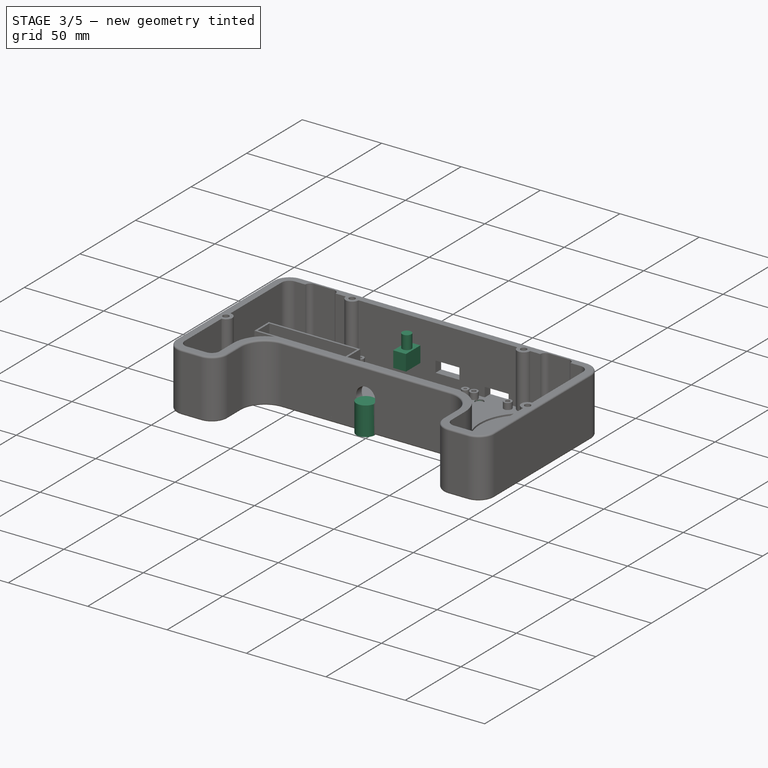
[diagram: stage 3 of 5 — iso view after this stage's code; geometry added in this stage tinted green]
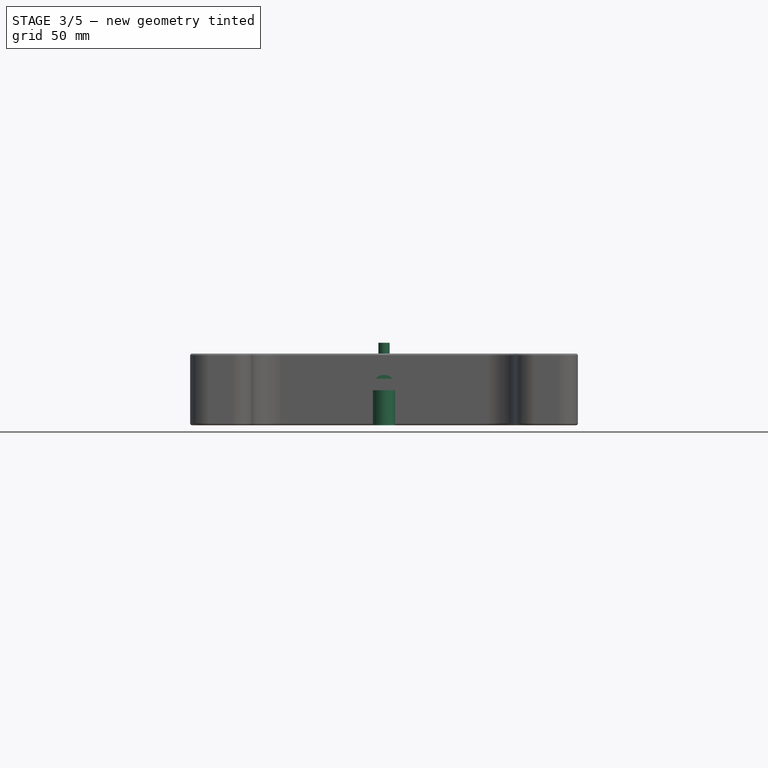
[diagram: stage 3 of 5 — front view after this stage's code; geometry added in this stage tinted green]
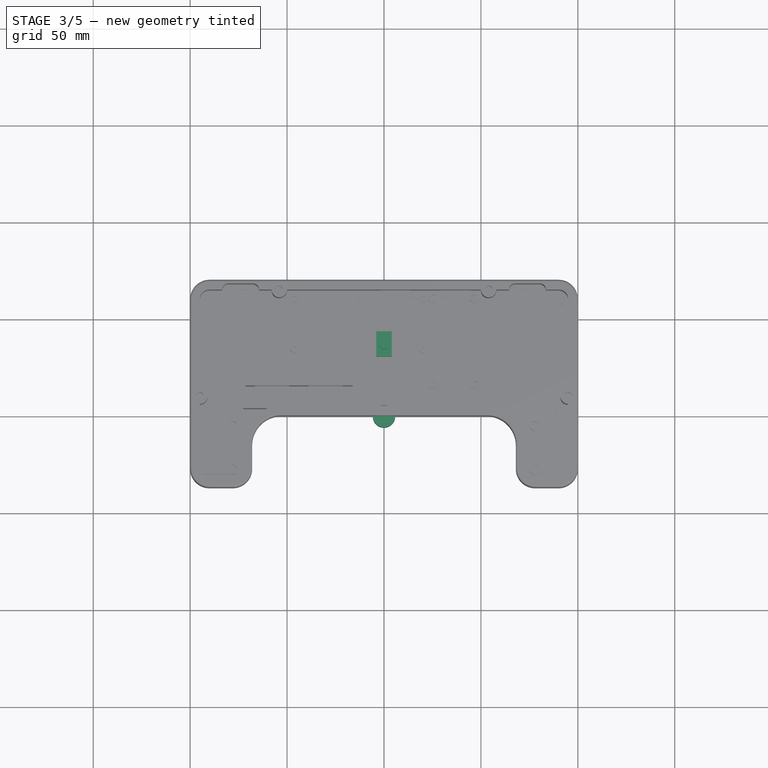
[diagram: stage 3 of 5 — top view after this stage's code; geometry added in this stage tinted green]
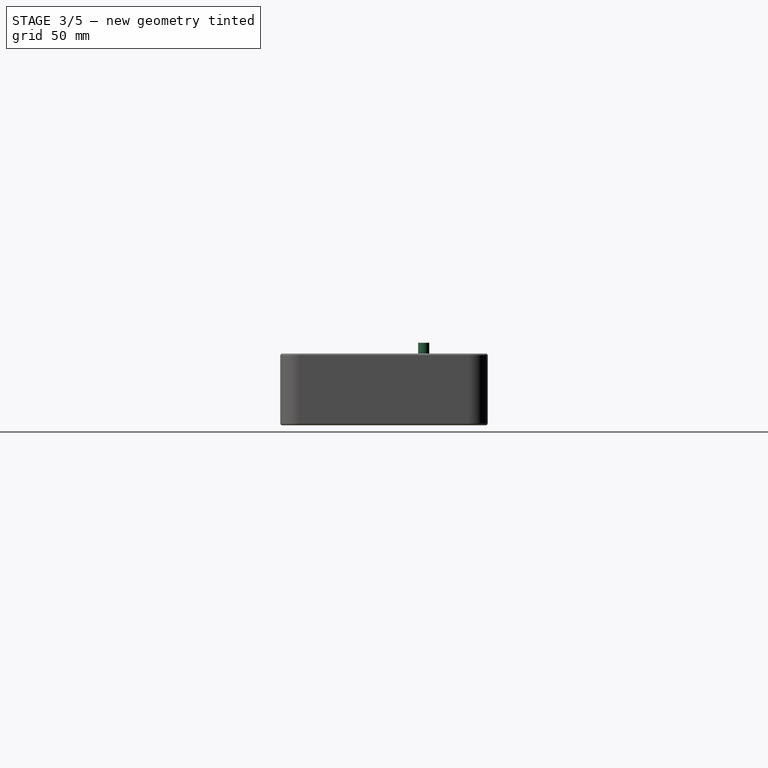
[diagram: stage 3 of 5 — right view after this stage's code; geometry added in this stage tinted green]
FEATURE [PartDesign::Body] Body009  label="MicroControllerModel"
  Group = -> [Sketch008,Pad007,Sketch009,Pad008,Sketch010,Pad009,Sketch011,Pad010,Sketch013,Pad011,Sketch014,Pocket002]
  Origin = -> Origin009
  Placement = pos=(36,39,8.6) rot=(0.707107,-0.707107,0;3.14159rad)
  Tip = -> Pocket002
FEATURE [Sketcher::SketchObject] Sketch017
  FullyConstrained = true
  MapMode = 5
  Support = -> [XY_Plane003]
  sketch-geometry (1):
    g0: Circle CenterX=0 CenterY=0 CenterZ=0 NormalX=0 NormalY=0 NormalZ=1 AngleXU=0 Radius=5.8
  constraints (2):
    c: Coincident(g0,g-1)
    c: Radius(g0) = 5.8
FEATURE [PartDesign::Pad] Pad013  label="ButtonBody"
  Direction = (1,1,1)
  Length = 18
  Length2 = 100
  Profile = -> Sketch017
  Type = 0
FEATURE [PartDesign::Body] Body003  label="Button1"
  Group = -> [Sketch017,Pad013,Sketch018,Pad014]
  Origin = -> Origin003
  Placement = pos=(-84,-20,22) rot=(0,0,1;0rad)
  Tip = -> Pad014
FEATURE [Sketcher::SketchObject] Sketch019
  FullyConstrained = true
  MapMode = 5
  Placement = pos=(0,0,0) rot=(1,0,0;1.5708rad)
  Support = -> [XZ_Plane007]
  sketch-geometry (4):
    g0: LineSegment StartX=-6.5 StartY=5 StartZ=0 EndX=6.5 EndY=5 EndZ=0
    g1: LineSegment StartX=6.5 StartY=5 StartZ=0 EndX=6.5 EndY=-5 EndZ=0
    g2: LineSegment StartX=6.5 StartY=-5 StartZ=0 EndX=-6.5 EndY=-5 EndZ=0
    g3: LineSegment StartX=-6.5 StartY=-5 StartZ=0 EndX=-6.5 EndY=5 EndZ=0
  constraints (10):
    c: Coincident(g0,g1)
    c: Coincident(g1,g2)
    c: Coincident(g2,g3)
    c: Coincident(g3,g0)
    c: Horizontal(g2)
    c: Vertical(g1)
    c: Symmetric(g0,g2,g-1)
    c: Symmetric(g0,g0,g-2)
    c: Distance(g0) = 13
    c: Distance(g1) = 10
FEATURE [PartDesign::Pad] Pad015  label="SwitchSmallBody"
  Direction = (1,1,1)
  Length = 8
  Length2 = 100
  Midplane = true
  Placement = pos=(0,0,0) rot=(1,0,0;1.5708rad)
  Profile = -> Sketch019
  Type = 0
FEATURE [Sketcher::SketchObject] Sketch020
  ExternalGeometry = -> [Pad015]
  FullyConstrained = true
  MapMode = 5
  Placement = pos=(0,1.1e-15,5) rot=(0,0,1;3.14159rad)
  Support = -> [Pad015]
  sketch-geometry (3):
    g0: Circle CenterX=0 CenterY=0 CenterZ=0 NormalX=0 NormalY=0 NormalZ=1 AngleXU=0 Radius=2.875
    g1: LineSegment StartX=-6.5 StartY=4 StartZ=0 EndX=6.5 EndY=-4 EndZ=0
    g2: LineSegment StartX=6.5 StartY=4 StartZ=0 EndX=-6.5 EndY=-4 EndZ=0
  constraints (7):
    c: Coincident(g1,g-5)
    c: Coincident(g1,g-4)
    c: Coincident(g2,g-4)
    c: Coincident(g2,g-5)
    c: PointOnObject(g0,g1)
    c: PointOnObject(g0,g2)
    c: Radius(g0) = 2.875
FEATURE [PartDesign::Pad] Pad016  label="SwitchSmallCylinder"
  BaseFeature = -> Pad015
  Direction = (1,1,1)
  Length = 8.5
  Length2 = 100
  Placement = pos=(0,0,0) rot=(1,0,0;1.5708rad)
  Profile = -> Sketch020
  Type = 0
FEATURE [Sketcher::SketchObject] Sketch186
  ExternalGeometry = -> [Pocket009]
  FullyConstrained = true
  MapMode = 5
  Placement = pos=(0,0,3) rot=(0,0,1;0rad)
  Support = -> [Pocket009]
  sketch-geometry (7):
    g0: Circle CenterX=0 CenterY=47 CenterZ=0 NormalX=0 NormalY=0 NormalZ=1 AngleXU=0 Radius=2.9
    g1: Circle CenterX=15 CenterY=47 CenterZ=0 NormalX=0 NormalY=0 NormalZ=1 AngleXU=0 Radius=2.9
    g2: Circle CenterX=30 CenterY=47 CenterZ=0 NormalX=0 NormalY=0 NormalZ=1 AngleXU=0 Radius=2.9
    g3: Circle CenterX=-15 CenterY=47 CenterZ=0 NormalX=0 NormalY=0 NormalZ=1 AngleXU=0 Radius=2.9
    g4: Circle CenterX=-30 CenterY=47 CenterZ=0 NormalX=0 NormalY=0 NormalZ=1 AngleXU=0 Radius=2.9
    g5: LineSegment StartX=-30 StartY=47 StartZ=0 EndX=30 EndY=47 EndZ=0
    g6: LineSegment StartX=-72.85 StartY=38 StartZ=0 EndX=72.85 EndY=38 EndZ=0
  constraints (17):
    c: Equal(g4,g3)
    c: Equal(g3,g0)
    c: Equal(g0,g1)
    c: Equal(g1,g2)
    c: PointOnObject(g0,g-2)
    c: Symmetric(g1,g3,g-2)
    c: Symmetric(g2,g4,g-2)
    c: Distance(g0,g3) = 15
    c: Distance(g3,g4) = 15
    c: Radius(g0) = 2.9
    c: Coincident(g5,g4)
    c: Coincident(g5,g2)
    c: Distance(g2,g6) = 9
    c: PointOnObject(g1,g5)
    c: PointOnObject(g0,g5)
    c: Coincident(g-3,g6)
    c: Coincident(g-4,g6)
FEATURE [PartDesign::FeatureBase] Clone004
  BaseFeature = -> Body007
  Placement = pos=(0,37,29) rot=(0,0,1;1.5708rad)
FEATURE [PartDesign::Body] Body034  label="SwitchSmall2"
  BaseFeature = -> Body007
  Group = -> [Clone004]
  Origin = -> Origin034
  Placement = pos=(15,10,0) rot=(0,0,1;0rad)
  Tip = -> Clone004
FEATURE [PartDesign::FeatureBase] Clone005
  BaseFeature = -> Body007
  Placement = pos=(0,37,29) rot=(0,0,1;1.5708rad)
FEATURE [PartDesign::Body] Body035  label="SwitchSmall3"
  BaseFeature = -> Body007
  Group = -> [Clone005]
  Origin = -> Origin035
  Placement = pos=(30,10,0) rot=(0,0,1;0rad)
  Tip = -> Clone005
FEATURE [PartDesign::FeatureBase] Clone006
  BaseFeature = -> Body007
  Placement = pos=(0,37,29) rot=(0,0,1;1.5708rad)
FEATURE [PartDesign::Body] Body036  label="SwitchSmall4"
  BaseFeature = -> Body007
  Group = -> [Clone006]
  Origin = -> Origin036
  Placement = pos=(-15,10,0) rot=(0,0,1;0rad)
  Tip = -> Clone006
FEATURE [PartDesign::FeatureBase] Clone007
  BaseFeature = -> Body007
  Placement = pos=(0,37,29) rot=(0,0,1;1.5708rad)
FEATURE [Sketcher::SketchObject] Sketch187
  ExternalGeometry = -> [Pocket010]
  FullyConstrained = true
  MapMode = 5
  Placement = pos=(0,0,3) rot=(0,0,1;0rad)
  Support = -> [Pocket010]
  sketch-geometry (10):
    g0: LineSegment StartX=-30 StartY=47 StartZ=0 EndX=30 EndY=47 EndZ=0
    g1: LineSegment StartX=30 StartY=47 StartZ=0 EndX=30 EndY=59.5 EndZ=0
    g2: LineSegment StartX=30 StartY=59.5 StartZ=0 EndX=-30 EndY=59.5 EndZ=0
    g3: LineSegment StartX=-30 StartY=59.5 StartZ=0 EndX=-30 EndY=47 EndZ=0
    g4: Circle CenterX=-30 CenterY=59.5 CenterZ=0 NormalX=0 NormalY=0 NormalZ=1 AngleXU=0 Radius=2.6
    g5: Circle CenterX=-15 CenterY=59.5 CenterZ=0 NormalX=0 NormalY=0 NormalZ=1 AngleXU=0 Radius=2.6
    g6: Circle CenterX=0 CenterY=59.5 CenterZ=0 NormalX=0 NormalY=0 NormalZ=1 AngleXU=0 Radius=2.6
    g7: Circle CenterX=15 CenterY=59.5 CenterZ=0 NormalX=0 NormalY=0 NormalZ=1 AngleXU=0 Radius=2.6
    g8: Circle CenterX=30 CenterY=59.5 CenterZ=0 NormalX=0 NormalY=0 NormalZ=1 AngleXU=0 Radius=2.6
    g9: LineSegment StartX=15 StartY=47 StartZ=0 EndX=15 EndY=59.5 EndZ=0
  constraints (24):
    c: Coincident(g0,g1)
    c: Coincident(g1,g2)
    c: Coincident(g2,g3)
    c: Horizontal(g2)
    c: Vertical(g1)
    c: Vertical(g3)
    c: Distance(g1) = 12.5
    c: Coincident(g4,g2)
    c: PointOnObject(g5,g2)
    c: PointOnObject(g6,g2)
    c: Coincident(g8,g1)
    c: Equal(g4,g5)
    c: Equal(g5,g6)
    c: Equal(g6,g7)
    c: Equal(g7,g8)
    c: PointOnObject(g6,g-2)
    c: Symmetric(g7,g5,g-2)
    c: Radius(g4) = 2.6
    c: Coincident(g0,g3)
    c: Coincident(g0,g-5)
    c: Coincident(g-6,g0)
    c: Coincident(g9,g-7)
    c: Coincident(g9,g7)
    c: Vertical(g9)
FEATURE [PartDesign::Pocket] Pocket011  label="RemoteV1LidLEDHoles"
  BaseFeature = -> Pocket010
  Length = 5
  Length2 = 100
  Profile = -> Sketch187
  Type = 1
FEATURE [Sketcher::SketchObject] Sketch190
  ExternalGeometry = -> [Pocket011]
  FullyConstrained = true
  MapMode = 5
  Placement = pos=(0,0,3) rot=(0,0,1;0rad)
  Support = -> [Pocket011]
  sketch-geometry (16):
    g0: LineSegment StartX=-90 StartY=70 StartZ=0 EndX=90 EndY=70 EndZ=0
    g1: LineSegment StartX=90 StartY=70 StartZ=0 EndX=90 EndY=65 EndZ=0
    g2: LineSegment StartX=90 StartY=65 StartZ=0 EndX=-90 EndY=65 EndZ=0
    g3: LineSegment StartX=-90 StartY=65 StartZ=0 EndX=-90 EndY=70 EndZ=0
    g4: LineSegment StartX=-100 StartY=33.6265 StartZ=0 EndX=-95 EndY=33.6265 EndZ=0
    g5: LineSegment StartX=-95 StartY=33.6265 StartZ=0 EndX=-95 EndY=-27 EndZ=0
    g6: LineSegment StartX=-95 StartY=-27 StartZ=0 EndX=-100 EndY=-27 EndZ=0
    g7: LineSegment StartX=-100 StartY=-27 StartZ=0 EndX=-100 EndY=33.6265 EndZ=0
    g8: LineSegment StartX=100 StartY=-27 StartZ=0 EndX=95 EndY=-27 EndZ=0
    g9: LineSegment StartX=95 StartY=-27 StartZ=0 EndX=95 EndY=33.6265 EndZ=0
    g10: LineSegment StartX=95 StartY=33.6265 StartZ=0 EndX=100 EndY=33.6265 EndZ=0
    g11: LineSegment StartX=100 StartY=33.6265 StartZ=0 EndX=100 EndY=-27 EndZ=0
    g12: Circle CenterX=54 CenterY=65 CenterZ=0 NormalX=0 NormalY=0 NormalZ=1 AngleXU=0 Radius=2
    g13: Circle CenterX=-54 CenterY=65 CenterZ=0 NormalX=0 NormalY=0 NormalZ=1 AngleXU=0 Radius=2
    g14: Circle CenterX=-95 CenterY=10 CenterZ=0 NormalX=0 NormalY=0 NormalZ=1 AngleXU=0 Radius=2
    g15: Circle CenterX=95 CenterY=10 CenterZ=0 NormalX=0 NormalY=0 NormalZ=1 AngleXU=0 Radius=2
  constraints (40):
    c: Coincident(g0,g1)
    c: Coincident(g1,g2)
    c: Coincident(g2,g3)
    c: Coincident(g3,g0)
    c: Horizontal(g2)
    c: Vertical(g1)
    c: Vertical(g3)
    c: Coincident(g0,g-4)
    c: Coincident(g0,g-4)
    c: Coincident(g4,g5)
    c: Coincident(g5,g6)
    c: Coincident(g6,g7)
    c: Coincident(g7,g4)
    c: Horizontal(g4)
    c: Horizontal(g6)
    c: Vertical(g5)
    c: Coincident(g4,g-3)
    c: Coincident(g8,g9)
    c: Coincident(g9,g10)
    c: Coincident(g10,g11)
    c: Coincident(g11,g8)
    c: Horizontal(g8)
    c: Horizontal(g10)
    c: Vertical(g9)
    c: Coincident(g8,g-5)
    c: Coincident(g-5,g10)
    c: Equal(g8,g1)
    c: Equal(g1,g6)
    c: Coincident(g6,g-3)
    c: Distance(g3) = 5
    c: PointOnObject(g12,g2)
    c: Equal(g13,g12)
    c: Symmetric(g12,g13,g-2)
    c: Distance(g12,g13) = 108
    c: Radius(g12) = 2
    c: PointOnObject(g14,g5)
    c: DistanceY(g-1,g14) = 10
    c: Equal(g14,g13)
    c: Equal(g15,g14)
    c: Symmetric(g14,g15,g-2)
FEATURE [PartDesign::Pocket] Pocket013  label="RemoteV1LidScrewholes001"
  BaseFeature = -> Pocket011
  Length = 5
  Length2 = 100
  Profile = -> Sketch190
  Type = 1
FEATURE [Sketcher::SketchObject] Sketch191
  ExternalGeometry = -> [Pocket013]
  FullyConstrained = true
  MapMode = 5
  Placement = pos=(0,0,3) rot=(0,0,1;0rad)
  Support = -> [Pocket013]
  sketch-geometry (4):
    g0: Circle CenterX=-95 CenterY=10 CenterZ=0 NormalX=0 NormalY=0 NormalZ=1 AngleXU=0 Radius=3.6
    g1: Circle CenterX=-54 CenterY=65 CenterZ=0 NormalX=0 NormalY=0 NormalZ=1 AngleXU=0 Radius=3.6
    g2: Circle CenterX=54 CenterY=65 CenterZ=0 NormalX=0 NormalY=0 NormalZ=1 AngleXU=0 Radius=3.6
    g3: Circle CenterX=95 CenterY=10 CenterZ=0 NormalX=0 NormalY=0 NormalZ=1 AngleXU=0 Radius=3.6
  constraints (8):
    c: Equal(g2,g3)
    c: Equal(g3,g1)
    c: Equal(g1,g0)
    c: Radius(g0) = 3.6
    c: Coincident(g3,g-4)
    c: Coincident(g-3,g0)
    c: Coincident(g1,g-5)
    c: Coincident(g2,g-6)
FEATURE [PartDesign::Pocket] Pocket014  label="RemoteV1LidScrewheadSlots"
  BaseFeature = -> Pocket013
  Length = 1.5
  Length2 = 100
  Profile = -> Sketch191
  Type = 0
FEATURE [PartDesign::Fillet] Fillet001  label="RemoteV1LidOuterFillets"
  Base = -> Pocket014 [Edge4,Edge9]
  BaseFeature = -> Pocket014
  Radius = 1
  SupportTransform = false
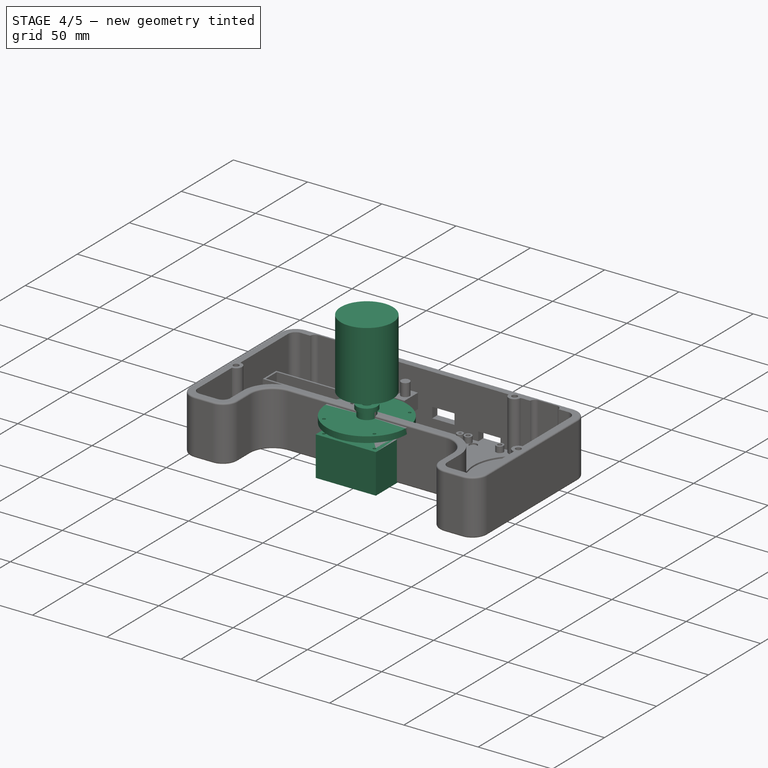
[diagram: stage 4 of 5 — iso view after this stage's code; geometry added in this stage tinted green]
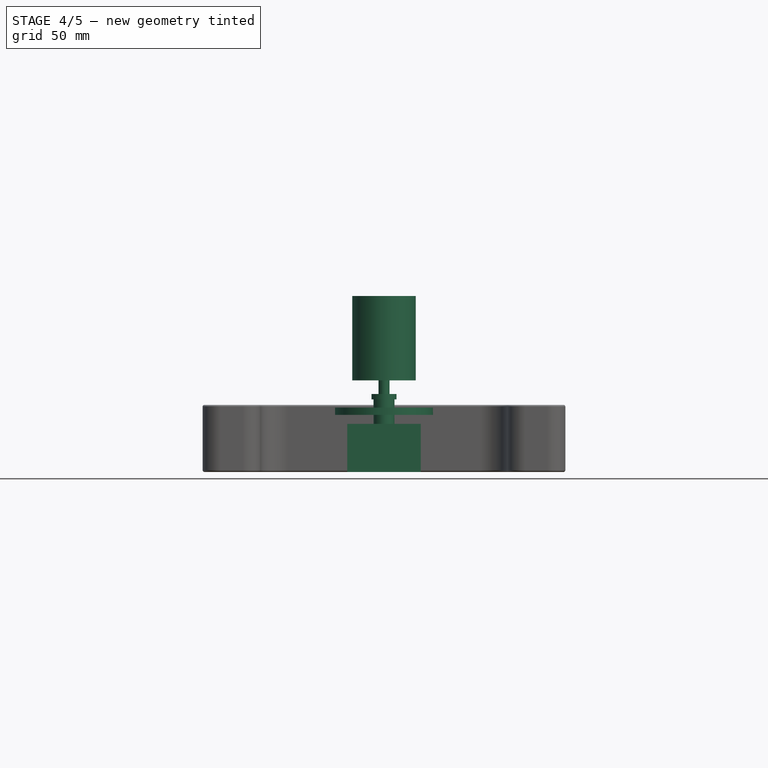
[diagram: stage 4 of 5 — front view after this stage's code; geometry added in this stage tinted green]
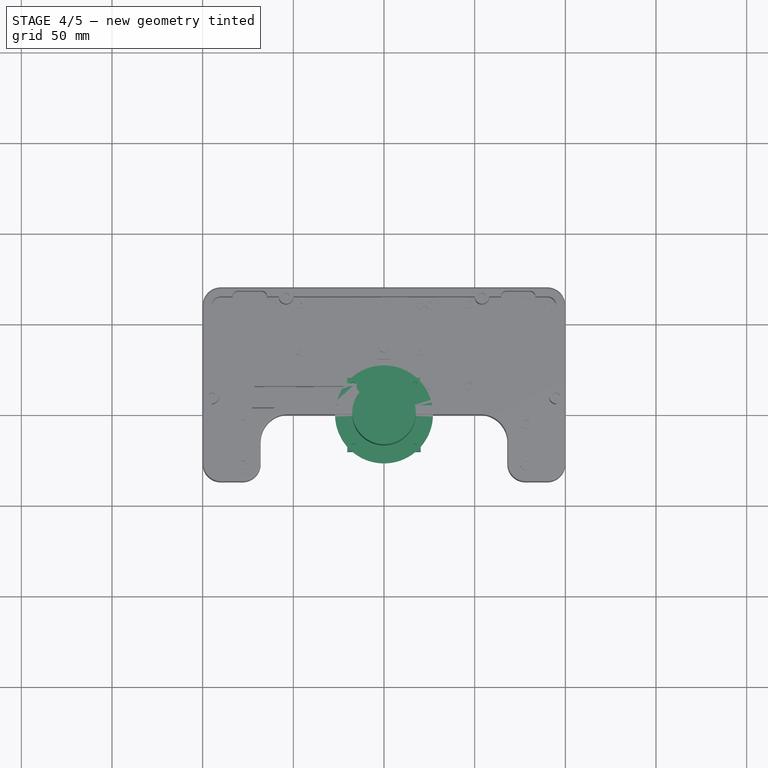
[diagram: stage 4 of 5 — top view after this stage's code; geometry added in this stage tinted green]
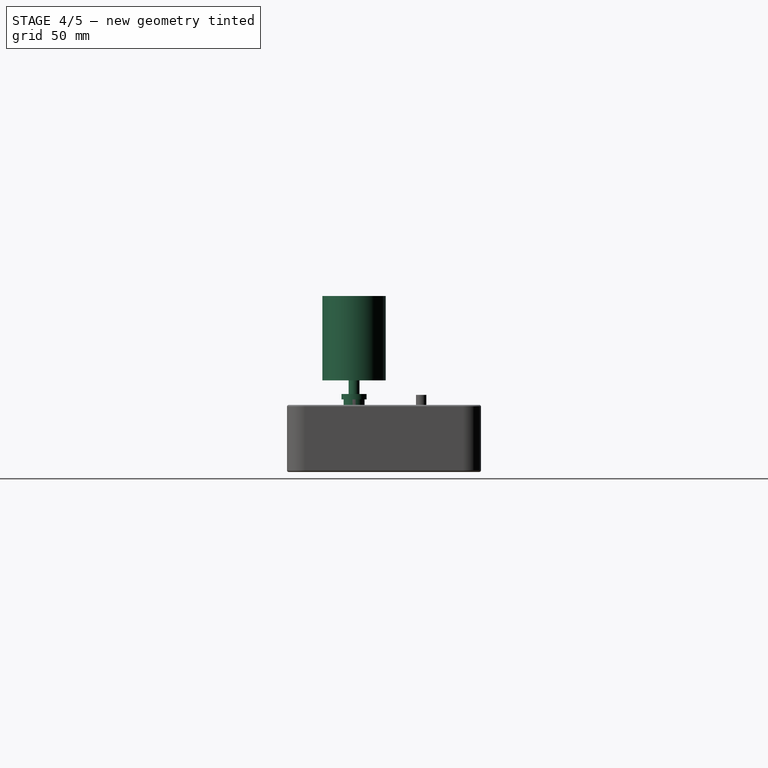
[diagram: stage 4 of 5 — right view after this stage's code; geometry added in this stage tinted green]
FEATURE [Sketcher::SketchObject] Sketch018
  FullyConstrained = true
  MapMode = 5
  Placement = pos=(0,0,18) rot=(0,0,1;0rad)
  Support = -> [Pad013]
  sketch-geometry (1):
    g0: Circle CenterX=0 CenterY=0 CenterZ=0 NormalX=0 NormalY=0 NormalZ=1 AngleXU=0 Radius=6.925
  constraints (2):
    c: Coincident(g0,g-1)
    c: Radius(g0) = 6.925
FEATURE [PartDesign::Pad] Pad014  label="ButtonEnd"
  BaseFeature = -> Pad013
  Direction = (1,1,1)
  Length = 3
  Length2 = 100
  Profile = -> Sketch018
  Type = 0
FEATURE [PartDesign::Body] Body008  label="Switch2"
  Group = -> [Sketch021,Pad017,Sketch022,Pad018]
  Origin = -> Origin008
  Placement = pos=(0,16.25,20) rot=(1,0,0;1.5708rad)
  Tip = -> Pad018
FEATURE [Sketcher::SketchObject] Sketch023
  FullyConstrained = true
  MapMode = 5
  Support = -> [XY_Plane002]
  sketch-geometry (4):
    g0: LineSegment StartX=-20.25 StartY=20.25 StartZ=0 EndX=20.25 EndY=20.25 EndZ=0
    g1: LineSegment StartX=20.25 StartY=20.25 StartZ=0 EndX=20.25 EndY=-20.25 EndZ=0
    g2: LineSegment StartX=20.25 StartY=-20.25 StartZ=0 EndX=-20.25 EndY=-20.25 EndZ=0
    g3: LineSegment StartX=-20.25 StartY=-20.25 StartZ=0 EndX=-20.25 EndY=20.25 EndZ=0
  constraints (10):
    c: Coincident(g0,g1)
    c: Coincident(g1,g2)
    c: Coincident(g2,g3)
    c: Coincident(g3,g0)
    c: Horizontal(g2)
    c: Vertical(g3)
    c: Symmetric(g1,g0,g-1)
    c: Symmetric(g0,g0,g-2)
    c: Distance(g0) = 40.5
    c: Equal(g1,g0)
FEATURE [PartDesign::Pad] Pad019  label="JoyStickBody"
  Direction = (1,1,1)
  Length = 26.5
  Length2 = 100
  Profile = -> Sketch023
  Type = 0
FEATURE [Sketcher::SketchObject] Sketch024
  FullyConstrained = true
  MapMode = 5
  Placement = pos=(0,0,26.5) rot=(0,0,1;0rad)
  Support = -> [Pad019]
  sketch-geometry (1):
    g0: Circle CenterX=0 CenterY=0 CenterZ=0 NormalX=0 NormalY=0 NormalZ=1 AngleXU=0 Radius=3
  constraints (2):
    c: Coincident(g0,g-1)
    c: Radius(g0) = 3
FEATURE [PartDesign::Pad] Pad020  label="JoyStickSpacer"
  BaseFeature = -> Pad019
  Direction = (1,1,1)
  Length = 5
  Length2 = 100
  Profile = -> Sketch024
  Type = 0
FEATURE [Sketcher::SketchObject] Sketch025
  FullyConstrained = true
  MapMode = 5
  Placement = pos=(0,0,31.5) rot=(0,0,1;0rad)
  Support = -> [Pad020]
  sketch-geometry (10):
    g0: Circle CenterX=0 CenterY=0 CenterZ=0 NormalX=0 NormalY=0 NormalZ=1 AngleXU=0 Radius=27
    g1: Circle CenterX=16.9706 CenterY=16.9706 CenterZ=0 NormalX=0 NormalY=0 NormalZ=1 AngleXU=0 Radius=1
    g2: Circle CenterX=-16.9706 CenterY=16.9706 CenterZ=0 NormalX=0 NormalY=0 NormalZ=1 AngleXU=0 Radius=1
    g3: Circle CenterX=-16.9706 CenterY=-16.9706 CenterZ=0 NormalX=0 NormalY=0 NormalZ=1 AngleXU=0 Radius=1
    g4: Circle CenterX=16.9706 CenterY=-16.9706 CenterZ=0 NormalX=0 NormalY=0 NormalZ=1 AngleXU=0 Radius=1
    g5: LineSegment StartX=-16.9706 StartY=16.9706 StartZ=0 EndX=16.9706 EndY=16.9706 EndZ=0
    g6: LineSegment StartX=16.9706 StartY=16.9706 StartZ=0 EndX=16.9706 EndY=-16.9706 EndZ=0
    g7: LineSegment StartX=16.9706 StartY=-16.9706 StartZ=0 EndX=-16.9706 EndY=-16.9706 EndZ=0
    g8: LineSegment StartX=-16.9706 StartY=-16.9706 StartZ=0 EndX=-16.9706 EndY=16.9706 EndZ=0
    g9: Circle CenterX=0 CenterY=0 CenterZ=0 NormalX=0 NormalY=0 NormalZ=1 AngleXU=0 Radius=24
  constraints (22):
    c: Coincident(g0,g-1)
    c: Coincident(g5,g6)
    c: Coincident(g6,g7)
    c: Coincident(g7,g8)
    c: Coincident(g8,g5)
    c: Horizontal(g7)
    c: Vertical(g8)
    c: Coincident(g5,g2)
    c: Coincident(g6,g4)
    c: Coincident(g3,g7)
    c: Coincident(g1,g5)
    c: Symmetric(g1,g2,g-2)
    c: Symmetric(g1,g4,g-1)
    c: Radius(g0) = 27
    c: Equal(g1,g4)
    c: Equal(g4,g3)
    c: Equal(g3,g2)
    c: Radius(g2) = 1
    c: Coincident(g9,g0)
    c: PointOnObject(g1,g9)
    c: Radius(g9) = 24
    c: Equal(g5,g8)
FEATURE [PartDesign::Pad] Pad021  label="JoyStickMountingHoles"
  BaseFeature = -> Pad020
  Direction = (1,1,1)
  Length = 4
  Length2 = 100
  Profile = -> Sketch025
  Type = 0
FEATURE [Sketcher::SketchObject] Sketch026
  FullyConstrained = true
  MapMode = 5
  Placement = pos=(0,0,35.5) rot=(0,0,1;0rad)
  Support = -> [Pad021]
  sketch-geometry (1):
    g0: Circle CenterX=0 CenterY=0 CenterZ=0 NormalX=0 NormalY=0 NormalZ=1 AngleXU=0 Radius=3
  constraints (2):
    c: Coincident(g0,g-1)
    c: Radius(g0) = 3
FEATURE [PartDesign::Pad] Pad022  label="JoyStickAxis"
  BaseFeature = -> Pad021
  Direction = (1,1,1)
  Length = 15
  Length2 = 100
  Profile = -> Sketch026
  Type = 0
FEATURE [Sketcher::SketchObject] Sketch027
  FullyConstrained = true
  MapMode = 5
  Placement = pos=(0,0,50.5) rot=(0,0,1;0rad)
  Support = -> [Pad022]
  sketch-geometry (1):
    g0: Circle CenterX=0 CenterY=0 CenterZ=0 NormalX=0 NormalY=0 NormalZ=1 AngleXU=0 Radius=17.5
  constraints (2):
    c: Coincident(g0,g-1)
    c: Radius(g0) = 17.5
FEATURE [PartDesign::Pad] Pad023  label="JoyStickGrip"
  BaseFeature = -> Pad022
  Direction = (1,1,1)
  Length = 46.5
  Length2 = 100
  Profile = -> Sketch027
  Type = 0
FEATURE [Sketcher::SketchObject] Sketch028
  ExternalGeometry = -> [Pad023]
  FullyConstrained = true
  MapMode = 5
  Placement = pos=(0,0,26.5) rot=(0,0,1;0rad)
  Support = -> [Pad023]
  sketch-geometry (4):
    g0: Circle CenterX=-16.9706 CenterY=16.9706 CenterZ=0 NormalX=0 NormalY=0 NormalZ=1 AngleXU=0 Radius=1
    g1: Circle CenterX=16.9706 CenterY=16.9706 CenterZ=0 NormalX=0 NormalY=0 NormalZ=1 AngleXU=0 Radius=1
    g2: Circle CenterX=16.9706 CenterY=-16.9706 CenterZ=0 NormalX=0 NormalY=0 NormalZ=1 AngleXU=0 Radius=1
    g3: Circle CenterX=-16.9706 CenterY=-16.9706 CenterZ=0 NormalX=0 NormalY=0 NormalZ=1 AngleXU=0 Radius=1
  constraints (8):
    c: Coincident(g0,g-6)
    c: Coincident(g1,g-5)
    c: Coincident(g2,g-4)
    c: Coincident(g3,g-3)
    c: Equal(g3,g0)
    c: Equal(g0,g1)
    c: Equal(g1,g2)
    c: Equal(g-4,g2)
FEATURE [PartDesign::Pocket] Pocket004  label="JoyStickBodyScrewholes"
  BaseFeature = -> Pad023
  Length = 10
  Length2 = 100
  Profile = -> Sketch028
  Type = 0
FEATURE [PartDesign::FeatureBase] Clone001
  BaseFeature = -> Body003
  Placement = pos=(0,0,22) rot=(0,0,1;0rad)
FEATURE [PartDesign::Body] Body031  label="Button2"
  BaseFeature = -> Body003
  Group = -> [Clone001]
  Origin = -> Origin031
  Placement = pos=(-84,0,0) rot=(0,0,1;0rad)
  Tip = -> Clone001
FEATURE [PartDesign::FeatureBase] Clone002
  BaseFeature = -> Body003
  Placement = pos=(0,0,22) rot=(0,0,1;0rad)
FEATURE [PartDesign::Body] Body032  label="Button3"
  BaseFeature = -> Body003
  Group = -> [Clone002]
  Origin = -> Origin032
  Placement = pos=(84,0,0) rot=(0,0,1;0rad)
  Tip = -> Clone002
FEATURE [PartDesign::FeatureBase] Clone003
  BaseFeature = -> Body003
  Placement = pos=(0,0,22) rot=(0,0,1;0rad)
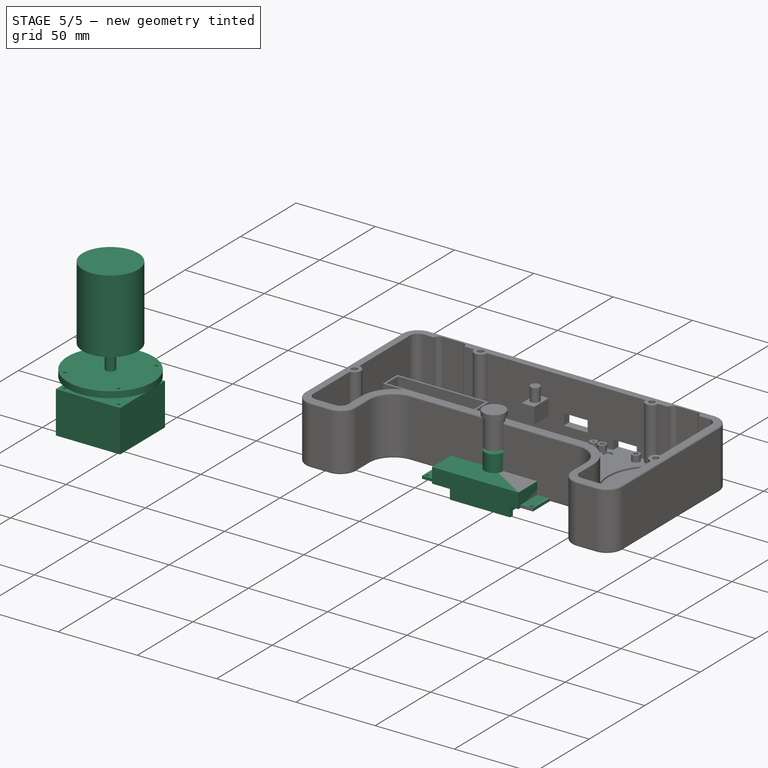
[diagram: stage 5 of 5 — iso view after this stage's code; geometry added in this stage tinted green]
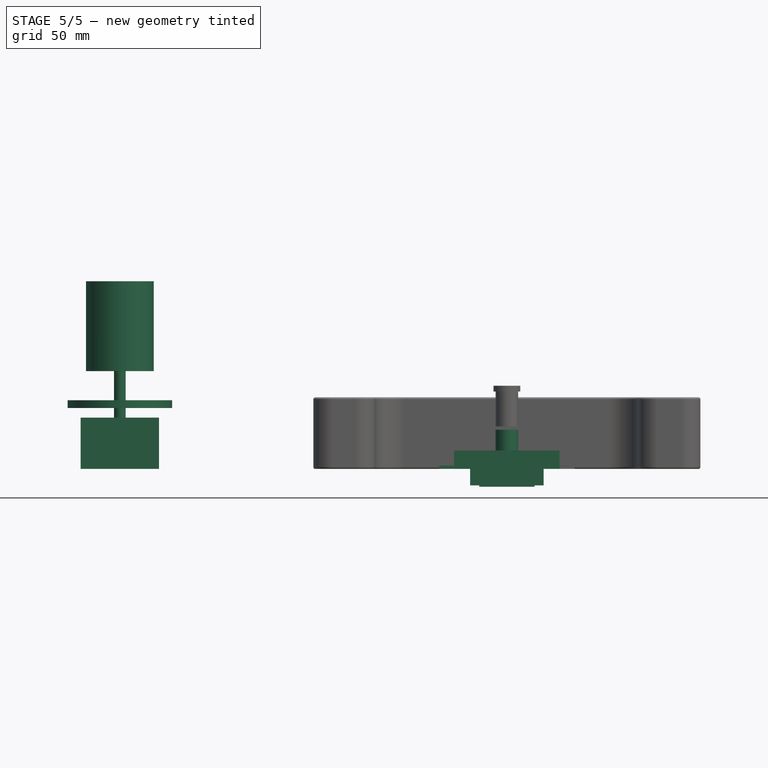
[diagram: stage 5 of 5 — front view after this stage's code; geometry added in this stage tinted green]
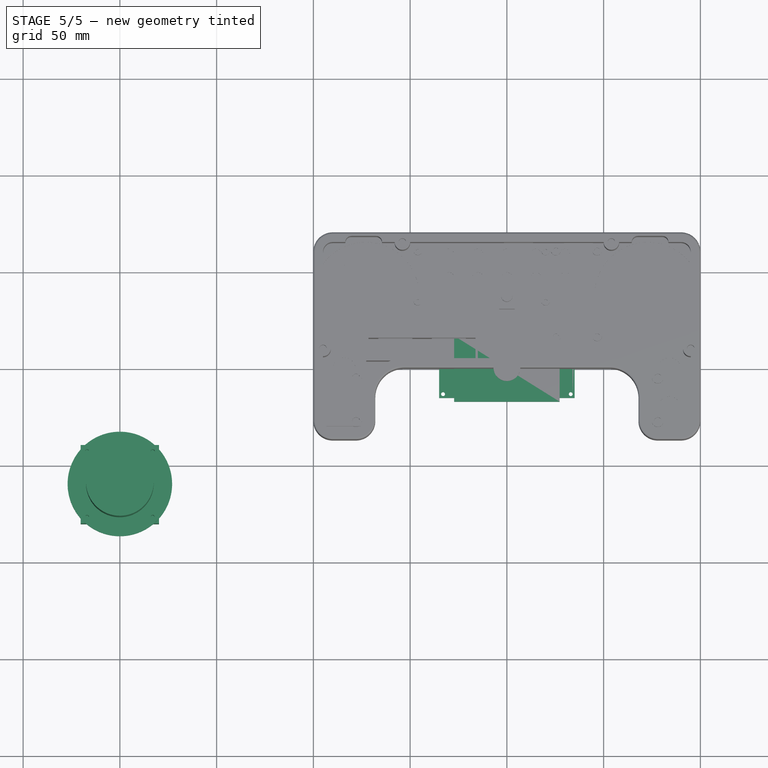
[diagram: stage 5 of 5 — top view after this stage's code; geometry added in this stage tinted green]
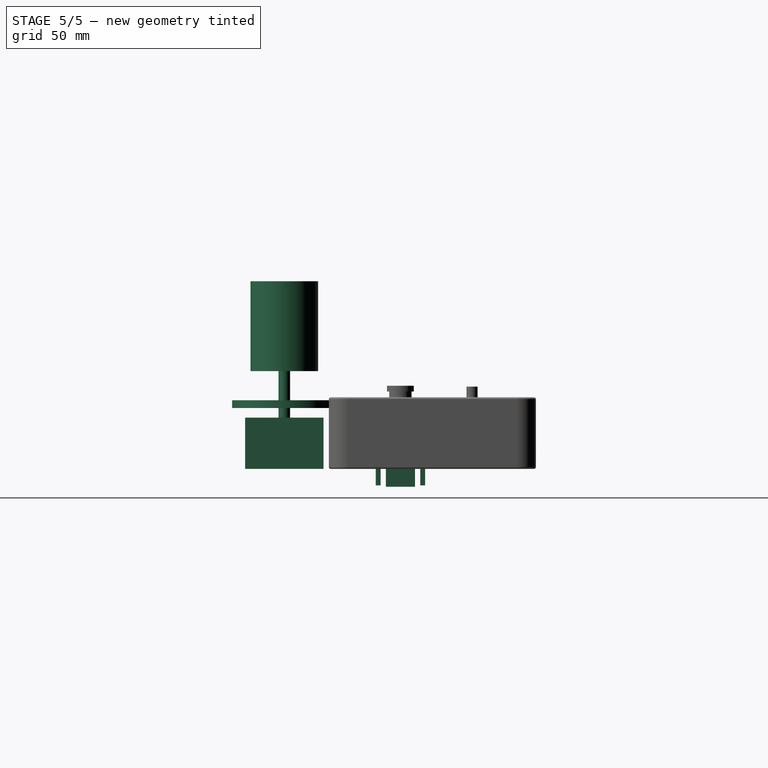
[diagram: stage 5 of 5 — right view after this stage's code; geometry added in this stage tinted green]
FEATURE [Sketcher::SketchObject] Sketch002
  FullyConstrained = true
  MapMode = 5
  Support = -> [XY_Plane005]
  sketch-geometry (4):
    g0: LineSegment StartX=-27.25 StartY=17 StartZ=0 EndX=27.25 EndY=17 EndZ=0
    g1: LineSegment StartX=27.25 StartY=17 StartZ=0 EndX=27.25 EndY=-17 EndZ=0
    g2: LineSegment StartX=27.25 StartY=-17 StartZ=0 EndX=-27.25 EndY=-17 EndZ=0
    g3: LineSegment StartX=-27.25 StartY=-17 StartZ=0 EndX=-27.25 EndY=17 EndZ=0
  constraints (10):
    c: Coincident(g0,g1)
    c: Coincident(g1,g2)
    c: Coincident(g2,g3)
    c: Coincident(g3,g0)
    c: Horizontal(g0)
    c: Vertical(g1)
    c: Symmetric(g1,g2,g-2)
    c: Distance(g2) = 54.5
    c: Distance(g3) = 34
    c: Symmetric(g0,g2,g-1)
FEATURE [PartDesign::Pad] Pad001  label="BatteryBody"
  Direction = (1,1,1)
  Length = 9.5
  Length2 = 100
  Profile = -> Sketch002
  Type = 0
FEATURE [PartDesign::Body] Body005  label="Battery"
  Group = -> [Sketch002,Pad001]
  Origin = -> Origin005
  Placement = pos=(-44,15,19) rot=(1,0,0;1.5708rad)
  Tip = -> Pad001
FEATURE [Sketcher::SketchObject] Sketch008
  FullyConstrained = true
  MapMode = 5
  Support = -> [XY_Plane009]
  sketch-geometry (4):
    g0: LineSegment StartX=-24.25 StartY=12.75 StartZ=0 EndX=24.25 EndY=12.75 EndZ=0
    g1: LineSegment StartX=24.25 StartY=12.75 StartZ=0 EndX=24.25 EndY=-12.75 EndZ=0
    g2: LineSegment StartX=24.25 StartY=-12.75 StartZ=0 EndX=-24.25 EndY=-12.75 EndZ=0
    g3: LineSegment StartX=-24.25 StartY=-12.75 StartZ=0 EndX=-24.25 EndY=12.75 EndZ=0
  constraints (10):
    c: Coincident(g0,g1)
    c: Coincident(g1,g2)
    c: Coincident(g2,g3)
    c: Coincident(g3,g0)
    c: Horizontal(g0)
    c: Vertical(g3)
    c: Symmetric(g1,g2,g-2)
    c: Symmetric(g0,g1,g-1)
    c: Distance(g3) = 25.5
    c: Distance(g0) = 48.5
FEATURE [PartDesign::Pad] Pad007  label="MicroControllerModelPCB"
  Direction = (1,1,1)
  Length = 1.6
  Length2 = 100
  Profile = -> Sketch008
  Type = 0
FEATURE [Sketcher::SketchObject] Sketch009
  ExternalGeometry = -> [Pad007]
  FullyConstrained = true
  MapMode = 5
  Placement = pos=(0,0,1.6) rot=(0,0,1;0rad)
  Support = -> [Pad007]
  sketch-geometry (4):
    g0: LineSegment StartX=0.25 StartY=8 StartZ=0 EndX=24.25 EndY=8 EndZ=0
    g1: LineSegment StartX=24.25 StartY=8 StartZ=0 EndX=24.25 EndY=-8 EndZ=0
    g2: LineSegment StartX=24.25 StartY=-8 StartZ=0 EndX=0.25 EndY=-8 EndZ=0
    g3: LineSegment StartX=0.25 StartY=-8 StartZ=0 EndX=0.25 EndY=8 EndZ=0
  constraints (11):
    c: Coincident(g0,g1)
    c: Coincident(g1,g2)
    c: Coincident(g2,g3)
    c: Coincident(g3,g0)
    c: Horizontal(g0)
    c: Horizontal(g2)
    c: Vertical(g3)
    c: PointOnObject(g1,g-3)
    c: Symmetric(g0,g1,g-1)
    c: Distance(g1) = 16
    c: Distance(g0) = 24
FEATURE [PartDesign::Pad] Pad008  label="MicroControllerModelESPBaseplate"
  BaseFeature = -> Pad007
  Direction = (1,1,1)
  Length = 1
  Length2 = 100
  Profile = -> Sketch009
  Type = 0
FEATURE [Sketcher::SketchObject] Sketch010
  ExternalGeometry = -> [Pad008]
  FullyConstrained = true
  MapMode = 5
  Placement = pos=(0,0,2.6) rot=(0,0,1;0rad)
  Support = -> [Pad008]
  sketch-geometry (4):
    g0: LineSegment StartX=1.25 StartY=6 StartZ=0 EndX=16.25 EndY=6 EndZ=0
    g1: LineSegment StartX=16.25 StartY=6 StartZ=0 EndX=16.25 EndY=-6 EndZ=0
    g2: LineSegment StartX=16.25 StartY=-6 StartZ=0 EndX=1.25 EndY=-6 EndZ=0
    g3: LineSegment StartX=1.25 StartY=-6 StartZ=0 EndX=1.25 EndY=6 EndZ=0
  constraints (11):
    c: Coincident(g0,g1)
    c: Coincident(g1,g2)
    c: Coincident(g2,g3)
    c: Coincident(g3,g0)
    c: Horizontal(g0)
    c: Horizontal(g2)
    c: Vertical(g1)
    c: Symmetric(g2,g0,g-1)
    c: Distance(g0,g-3) = 1
    c: Distance(g3) = 12
    c: Distance(g0) = 15
FEATURE [PartDesign::Pad] Pad009  label="MicroControllerModelESPChip"
  BaseFeature = -> Pad008
  Direction = (1,1,1)
  Length = 2.5
  Length2 = 100
  Profile = -> Sketch010
  Type = 0
FEATURE [Sketcher::SketchObject] Sketch011
  ExternalGeometry = -> [Pad009]
  FullyConstrained = true
  MapMode = 5
  Placement = pos=(0,0,1.6) rot=(0,0,1;0rad)
  Support = -> [Pad009]
  sketch-geometry (12):
    g0: LineSegment StartX=-24.25 StartY=7.75 StartZ=0 EndX=-20.25 EndY=7.75 EndZ=0
    g1: LineSegment StartX=-20.25 StartY=7.75 StartZ=0 EndX=-20.25 EndY=4.75 EndZ=0
    g2: LineSegment StartX=-20.25 StartY=4.75 StartZ=0 EndX=-24.25 EndY=4.75 EndZ=0
    g3: LineSegment StartX=-24.25 StartY=4.75 StartZ=0 EndX=-24.25 EndY=7.75 EndZ=0
    g4: LineSegment StartX=-24.25 StartY=-4.75 StartZ=0 EndX=-20.25 EndY=-4.75 EndZ=0
    g5: LineSegment StartX=-20.25 StartY=-4.75 StartZ=0 EndX=-20.25 EndY=-7.75 EndZ=0
    g6: LineSegment StartX=-20.25 StartY=-7.75 StartZ=0 EndX=-24.25 EndY=-7.75 EndZ=0
    g7: LineSegment StartX=-24.25 StartY=-7.75 StartZ=0 EndX=-24.25 EndY=-4.75 EndZ=0
    g8: LineSegment StartX=-25.25 StartY=3.75 StartZ=0 EndX=-19.55 EndY=3.75 EndZ=0
    g9: LineSegment StartX=-19.55 StartY=3.75 StartZ=0 EndX=-19.55 EndY=-3.75 EndZ=0
    g10: LineSegment StartX=-19.55 StartY=-3.75 StartZ=0 EndX=-25.25 EndY=-3.75 EndZ=0
    g11: LineSegment StartX=-25.25 StartY=-3.75 StartZ=0 EndX=-25.25 EndY=3.75 EndZ=0
  constraints (34):
    c: Coincident(g0,g1)
    c: Coincident(g1,g2)
    c: Coincident(g2,g3)
    c: Coincident(g3,g0)
    c: Horizontal(g0)
    c: Horizontal(g2)
    c: Vertical(g1)
    c: Vertical(g3)
    c: PointOnObject(g0,g-3)
    c: Coincident(g4,g5)
    c: Coincident(g5,g6)
    c: Coincident(g6,g7)
    c: Coincident(g7,g4)
    c: Horizontal(g4)
    c: Horizontal(g6)
    c: Vertical(g5)
    c: Vertical(g7)
    c: Symmetric(g4,g2,g-1)
    c: Coincident(g8,g9)
    c: Coincident(g9,g10)
    c: Coincident(g10,g11)
    c: Coincident(g11,g8)
    c: Horizontal(g8)
    c: Horizontal(g10)
    c: Vertical(g9)
    c: Symmetric(g8,g10,g-1)
    c: Equal(g3,g7)
    c: Equal(g2,g4)
    c: Distance(g7) = 3
    c: Distance(g4) = 4
    c: Distance(g9) = 7.5
    c: Distance(g8) = 5.7
    c: Distance(g8,g-3) = 1
    c: Distance(g0,g6) = 15.5
FEATURE [PartDesign::Pad] Pad010  label="MicroControllerModelUSBAndButtons"
  BaseFeature = -> Pad009
  Direction = (1,1,1)
  Length = 2.5
  Length2 = 100
  Profile = -> Sketch011
  Type = 0
FEATURE [Sketcher::SketchObject] Sketch013
  ExternalGeometry = -> [Pad010]
  FullyConstrained = true
  MapMode = 5
  Placement = pos=(0,0,0) rot=(1,0,0;3.14159rad)
  Support = -> [Pad010]
  sketch-geometry (8):
    g0: LineSegment StartX=-19 StartY=12.75 StartZ=0 EndX=19 EndY=12.75 EndZ=0
    g1: LineSegment StartX=19 StartY=12.75 StartZ=0 EndX=19 EndY=10.25 EndZ=0
    g2: LineSegment StartX=19 StartY=10.25 StartZ=0 EndX=-19 EndY=10.25 EndZ=0
    g3: LineSegment StartX=-19 StartY=10.25 StartZ=0 EndX=-19 EndY=12.75 EndZ=0
    g4: LineSegment StartX=19 StartY=-12.75 StartZ=0 EndX=-19 EndY=-12.75 EndZ=0
    g5: LineSegment StartX=-19 StartY=-12.75 StartZ=0 EndX=-19 EndY=-10.25 EndZ=0
    g6: LineSegment StartX=-19 StartY=-10.25 StartZ=0 EndX=19 EndY=-10.25 EndZ=0
    g7: LineSegment StartX=19 StartY=-10.25 StartZ=0 EndX=19 EndY=-12.75 EndZ=0
  constraints (22):
    c: Coincident(g0,g1)
    c: Coincident(g1,g2)
    c: Coincident(g2,g3)
    c: Coincident(g3,g0)
    c: Horizontal(g0)
    c: Vertical(g1)
    c: Vertical(g3)
    c: PointOnObject(g0,g-3)
    c: Coincident(g4,g5)
    c: Coincident(g5,g6)
    c: Coincident(g6,g7)
    c: Coincident(g7,g4)
    c: Horizontal(g4)
    c: Vertical(g5)
    c: Vertical(g7)
    c: PointOnObject(g4,g-4)
    c: Equal(g1,g7)
    c: Equal(g6,g2)
    c: Symmetric(g1,g2,g-2)
    c: Symmetric(g6,g5,g-2)
    c: Distance(g2) = 38
    c: Distance(g1) = 2.5
FEATURE [PartDesign::Pad] Pad011  label="MicroControllerModelPins"
  BaseFeature = -> Pad010
  Direction = (1,1,1)
  Length = 8.5
  Length2 = 100
  Profile = -> Sketch013
  Type = 0
FEATURE [Sketcher::SketchObject] Sketch014
  ExternalGeometry = -> [Pad011]
  FullyConstrained = true
  MapMode = 5
  Placement = pos=(0,0,1.6) rot=(0,0,1;0rad)
  Support = -> [Pad011]
  sketch-geometry (8):
    g0: LineSegment StartX=-22.15 StartY=10.65 StartZ=0 EndX=22.15 EndY=10.65 EndZ=0
    g1: LineSegment StartX=22.15 StartY=10.65 StartZ=0 EndX=22.15 EndY=-10.65 EndZ=0
    g2: LineSegment StartX=22.15 StartY=-10.65 StartZ=0 EndX=-22.15 EndY=-10.65 EndZ=0
    g3: LineSegment StartX=-22.15 StartY=-10.65 StartZ=0 EndX=-22.15 EndY=10.65 EndZ=0
    g4: Circle CenterX=-22.15 CenterY=10.65 CenterZ=0 NormalX=0 NormalY=0 NormalZ=1 AngleXU=0 Radius=1.5
    g5: Circle CenterX=-22.15 CenterY=-10.65 CenterZ=0 NormalX=0 NormalY=0 NormalZ=1 AngleXU=0 Radius=1.5
    g6: Circle CenterX=22.15 CenterY=-10.65 CenterZ=0 NormalX=0 NormalY=0 NormalZ=1 AngleXU=0 Radius=1.5
    g7: Circle CenterX=22.15 CenterY=10.65 CenterZ=0 NormalX=0 NormalY=0 NormalZ=1 AngleXU=0 Radius=1.5
  constraints (18):
    c: Coincident(g0,g1)
    c: Coincident(g1,g2)
    c: Coincident(g2,g3)
    c: Coincident(g3,g0)
    c: Horizontal(g2)
    c: Vertical(g1)
    c: Coincident(g4,g0)
    c: Coincident(g6,g1)
    c: Coincident(g7,g0)
    c: Equal(g7,g6)
    c: Equal(g6,g5)
    c: Equal(g5,g4)
    c: Coincident(g2,g5)
    c: Radius(g5) = 1.5
    c: Distance(g5,g-3) = 2.1
    c: Distance(g5,g-4) = 2.1
    c: Symmetric(g7,g4,g-2)
    c: Symmetric(g4,g5,g-1)
FEATURE [PartDesign::Pocket] Pocket002  label="MicroControllerModelScrewholes"
  BaseFeature = -> Pad011
  Length = 5
  Length2 = 100
  Profile = -> Sketch014
  Type = 1
FEATURE [PartDesign::Body] Body007  label="SwitchSmall1"
  Group = -> [Sketch019,Pad015,Sketch020,Pad016]
  Origin = -> Origin007
  Placement = pos=(0,47,29) rot=(0,0,1;1.5708rad)
  Tip = -> Pad016
FEATURE [Sketcher::SketchObject] Sketch021
  FullyConstrained = true
  MapMode = 5
  Placement = pos=(0,0,0) rot=(1,0,0;1.5708rad)
  Support = -> [XZ_Plane008]
  sketch-geometry (4):
    g0: LineSegment StartX=-14.25 StartY=9.25 StartZ=0 EndX=14.25 EndY=9.25 EndZ=0
    g1: LineSegment StartX=14.25 StartY=9.25 StartZ=0 EndX=14.25 EndY=-9.25 EndZ=0
    g2: LineSegment StartX=14.25 StartY=-9.25 StartZ=0 EndX=-14.25 EndY=-9.25 EndZ=0
    g3: LineSegment StartX=-14.25 StartY=-9.25 StartZ=0 EndX=-14.25 EndY=9.25 EndZ=0
  constraints (10):
    c: Coincident(g0,g1)
    c: Coincident(g1,g2)
    c: Coincident(g2,g3)
    c: Coincident(g3,g0)
    c: Horizontal(g2)
    c: Vertical(g1)
    c: Symmetric(g2,g0,g-1)
    c: Symmetric(g0,g0,g-2)
    c: Distance(g0) = 28.5
    c: Distance(g3) = 18.5
FEATURE [PartDesign::Pad] Pad017  label="Switch2Body"
  Direction = (1,1,1)
  Length = 15
  Length2 = 100
  Midplane = true
  Placement = pos=(0,0,0) rot=(1,0,0;1.5708rad)
  Profile = -> Sketch021
  Type = 0
FEATURE [Sketcher::SketchObject] Sketch022
  FullyConstrained = true
  MapMode = 5
  Placement = pos=(0,6.1e-15,9.25) rot=(0,0,1;3.14159rad)
  Support = -> [Pad017]
  sketch-geometry (1):
    g0: Circle CenterX=0 CenterY=0 CenterZ=0 NormalX=0 NormalY=0 NormalZ=1 AngleXU=0 Radius=5.9
  constraints (2):
    c: Coincident(g0,g-1)
    c: Radius(g0) = 5.9
FEATURE [PartDesign::Pad] Pad018  label="Switch2Cylinder"
  BaseFeature = -> Pad017
  Direction = (1,1,1)
  Length = 11
  Length2 = 100
  Placement = pos=(0,0,0) rot=(1,0,0;1.5708rad)
  Profile = -> Sketch022
  Type = 0
FEATURE [PartDesign::Body] Body002  label="JoyStick"
  Group = -> [Sketch023,Pad019,Sketch024,Pad020,Sketch025,Pad021,Sketch026,Pad022,Sketch027,Pad023,Sketch028,Pocket004]
  Origin = -> Origin002
  Placement = pos=(-72.88,38,10) rot=(0,0,1;0rad)
  Tip = -> Pocket004
FEATURE [Sketcher::SketchObject] Sketch176
  FullyConstrained = true
  MapMode = 5
  Support = -> [XY_Plane029]
  sketch-geometry (12):
    g0: LineSegment StartX=-35 StartY=15 StartZ=0 EndX=35 EndY=15 EndZ=0
    g1: LineSegment StartX=35 StartY=15 StartZ=0 EndX=35 EndY=-15 EndZ=0
    g2: LineSegment StartX=35 StartY=-15 StartZ=0 EndX=-35 EndY=-15 EndZ=0
    g3: LineSegment StartX=-35 StartY=-15 StartZ=0 EndX=-35 EndY=15 EndZ=0
    g4: LineSegment StartX=-33 StartY=13 StartZ=0 EndX=33 EndY=13 EndZ=0
    g5: LineSegment StartX=33 StartY=13 StartZ=0 EndX=33 EndY=-13 EndZ=0
    g6: LineSegment StartX=33 StartY=-13 StartZ=0 EndX=-33 EndY=-13 EndZ=0
    g7: LineSegment StartX=-33 StartY=-13 StartZ=0 EndX=-33 EndY=13 EndZ=0
    g8: Circle CenterX=-33 CenterY=13 CenterZ=0 NormalX=0 NormalY=0 NormalZ=1 AngleXU=0 Radius=1
    g9: Circle CenterX=-33 CenterY=-13 CenterZ=0 NormalX=0 NormalY=0 NormalZ=1 AngleXU=0 Radius=1
    g10: Circle CenterX=33 CenterY=-13 CenterZ=0 NormalX=0 NormalY=0 NormalZ=1 AngleXU=0 Radius=1
    g11: Circle CenterX=33 CenterY=13 CenterZ=0 NormalX=0 NormalY=0 NormalZ=1 AngleXU=0 Radius=1
  constraints (28):
    c: Coincident(g0,g1)
    c: Coincident(g1,g2)
    c: Coincident(g2,g3)
    c: Coincident(g3,g0)
    c: Horizontal(g2)
    c: Vertical(g3)
    c: Symmetric(g0,g1,g-1)
    c: Symmetric(g0,g0,g-2)
    c: Distance(g1) = 30
    c: Distance(g0) = 70
    c: Coincident(g4,g5)
    c: Coincident(g5,g6)
    c: Coincident(g6,g7)
    c: Coincident(g7,g4)
    c: Horizontal(g6)
    c: Vertical(g7)
    c: Symmetric(g5,g4,g-1)
    c: Symmetric(g4,g4,g-2)
    c: Coincident(g8,g4)
    c: Coincident(g9,g6)
    c: Coincident(g10,g5)
    c: Coincident(g11,g4)
    c: Equal(g11,g10)
    c: Equal(g10,g9)
    c: Equal(g9,g8)
    c: Radius(g8) = 1
    c: Distance(g8,g0) = 2
    c: Distance(g8,g3) = 2
FEATURE [PartDesign::Pad] Pad075  label="PCBBody"
  Direction = (1,1,1)
  Length = 1.7
  Length2 = 100
  Profile = -> Sketch176
  Type = 0
FEATURE [PartDesign::FeatureBase] Clone
  BaseFeature = -> Body002
  Placement = pos=(-200,-60,0) rot=(0,0,1;0rad)
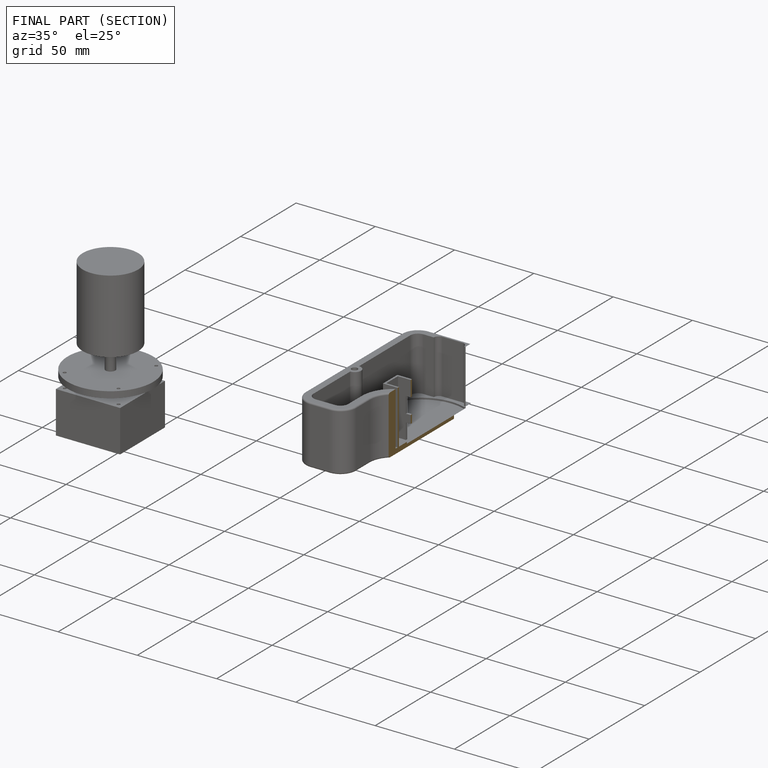
[diagram: finished part — half-section view (interior)]
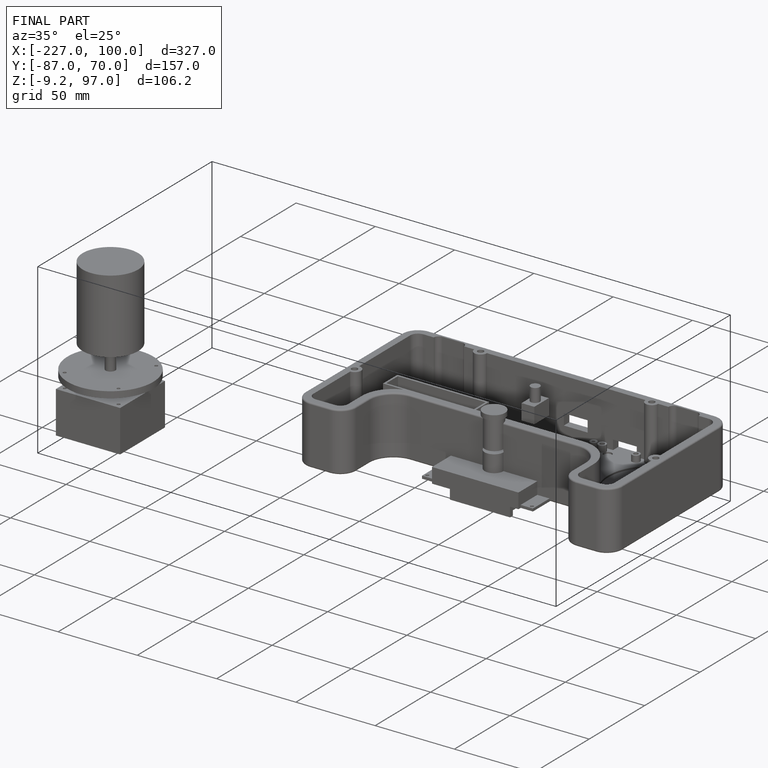
[diagram: finished part — iso view with bounding-box wireframe]
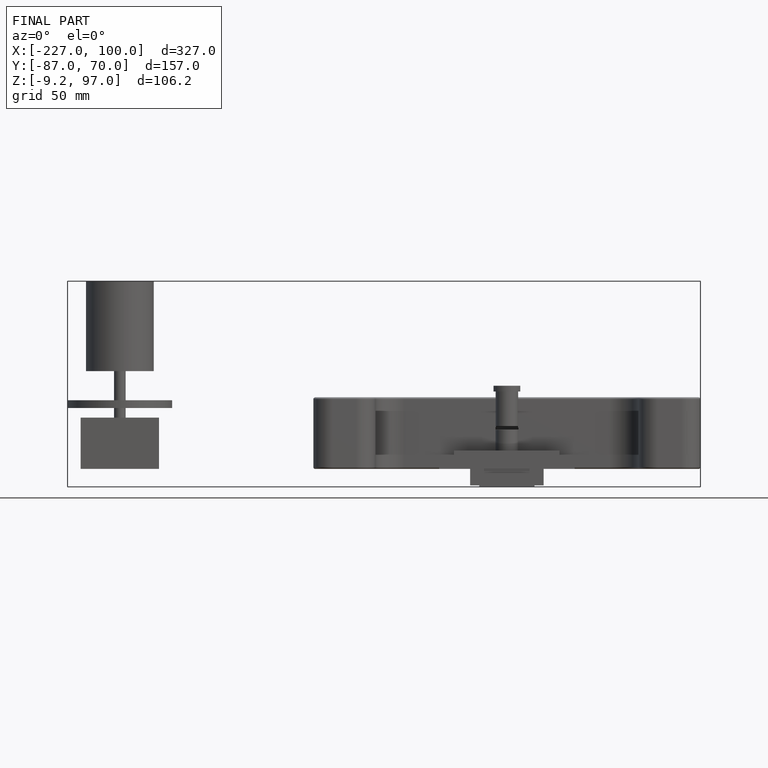
[diagram: finished part — front view with bounding-box wireframe]
